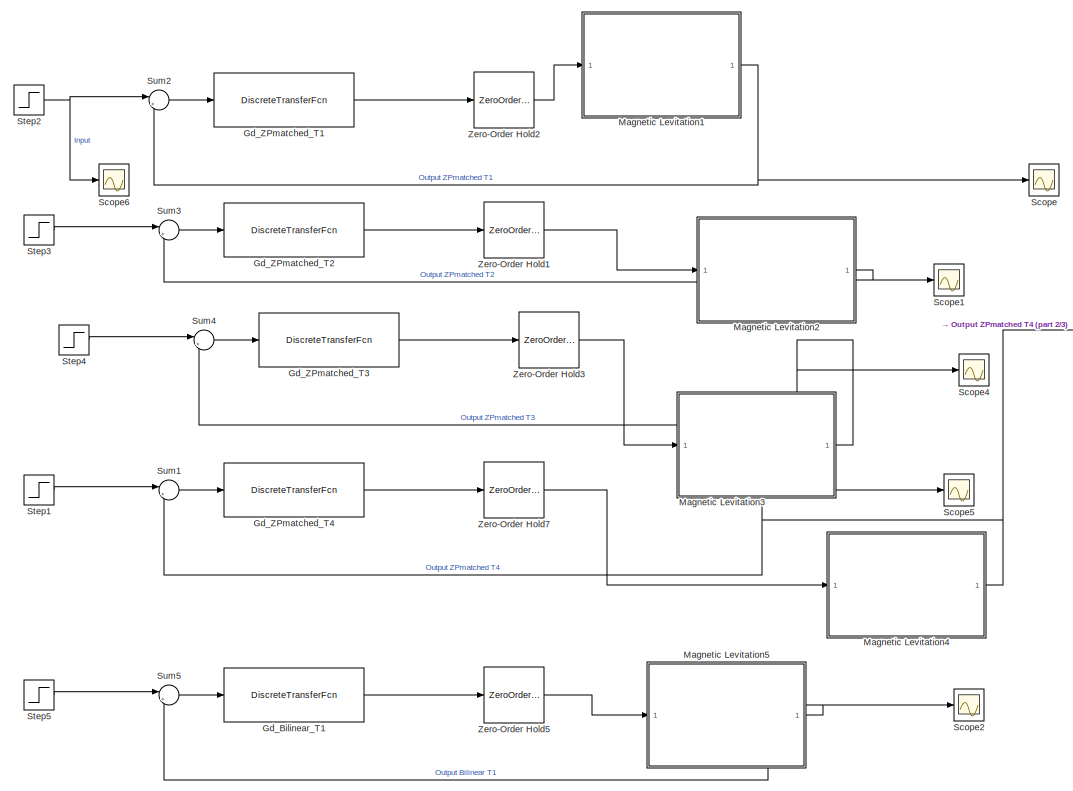
[diagram: root canvas - part 1/3, top center region]
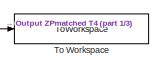
[diagram: root canvas - part 2/3, top right region]
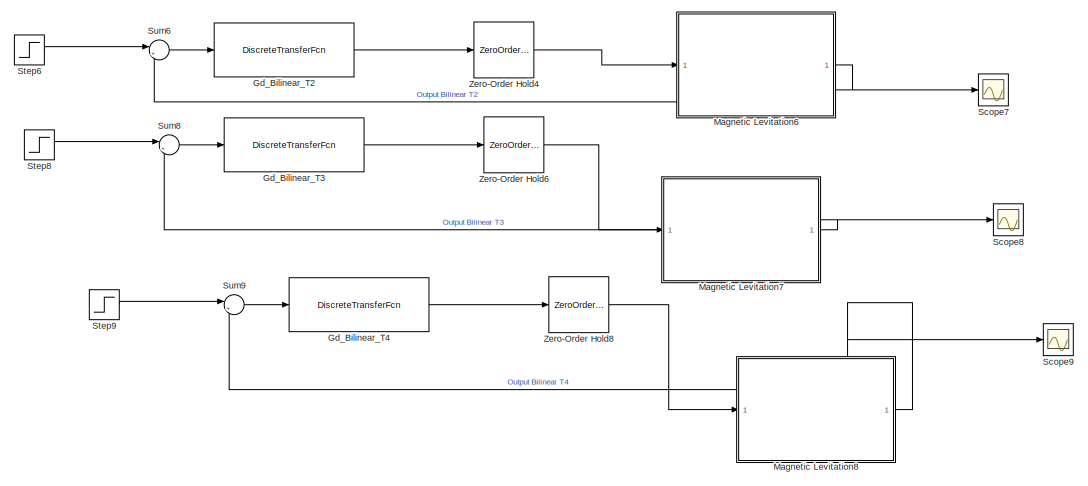
[diagram: root canvas - part 3/3, bottom center region]
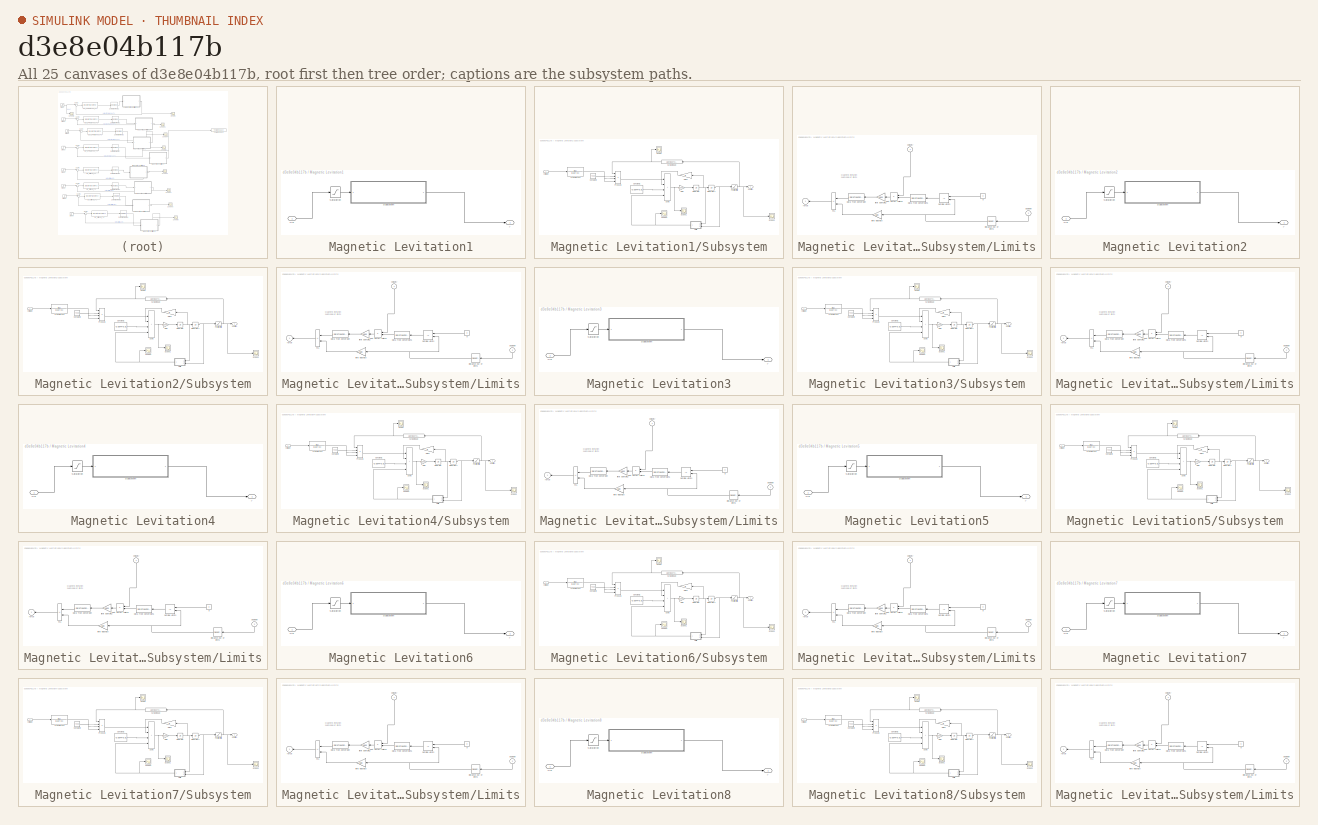
[diagram: thumbnail index - all 25 canvases of the model, root first then tree order]
MODEL slx_d3e8e04b117b
KIND model
CONFIG AbsTol = auto
CONFIG EnableMultiTasking = off
CONFIG FixedStep = auto
CONFIG MaxStep = auto
CONFIG MinStep = auto
CONFIG RelTol = 1e-3
CONFIG SampleTimeConstraint = Unconstrained
CONFIG SolverName = VariableStepAuto
CONFIG StartTime = 0.0
CONFIG StopTime = 100
BLOCK [DiscreteTransferFcn] Gd_Bilinear_T1
  Denominator = cell2mat(Gd_Bilinear_T1.Denominator)
  InputPortMap = u0
  Numerator = cell2mat(Gd_Bilinear_T1.Numerator)
  Ports = [1, 1]
  SampleTime = Ts(1)
BLOCK [DiscreteTransferFcn] Gd_Bilinear_T2
  Denominator = cell2mat(Gd_Bilinear_T2.Denominator)
  InputPortMap = u0
  Numerator = cell2mat(Gd_Bilinear_T2.Numerator)
  Ports = [1, 1]
  SampleTime = Ts(2)
BLOCK [DiscreteTransferFcn] Gd_Bilinear_T3
  Denominator = cell2mat(Gd_Bilinear_T3.Denominator)
  InputPortMap = u0
  Numerator = cell2mat(Gd_Bilinear_T3.Numerator)
  Ports = [1, 1]
  SampleTime = Ts(3)
BLOCK [DiscreteTransferFcn] Gd_Bilinear_T4
  Denominator = cell2mat(Gd_Bilinear_T3.Denominator)
  InputPortMap = u0
  Numerator = cell2mat(Gd_Bilinear_T3.Numerator)
  Ports = [1, 1]
  SampleTime = Ts(4)
BLOCK [DiscreteTransferFcn] Gd_ZPmatched_T1
  Denominator = cell2mat(Gd_ZPmatched_T1.Denominator)
  InputPortMap = u0
  Numerator = cell2mat(Gd_ZPmatched_T1.Numerator)
  Ports = [1, 1]
  SampleTime = Ts(1)
BLOCK [DiscreteTransferFcn] Gd_ZPmatched_T2
  Denominator = cell2mat(Gd_ZPmatched_T2.Denominator)
  InputPortMap = u0
  Numerator = cell2mat(Gd_ZPmatched_T2.Numerator)
  Ports = [1, 1]
  SampleTime = Ts(2)
BLOCK [DiscreteTransferFcn] Gd_ZPmatched_T3
  Denominator = cell2mat(Gd_ZPmatched_T3.Denominator)
  InputPortMap = u0
  Numerator = cell2mat(Gd_ZPmatched_T3.Numerator)
  Ports = [1, 1]
  SampleTime = Ts(3)
BLOCK [DiscreteTransferFcn] Gd_ZPmatched_T4
  Denominator = cell2mat(Gd_ZPmatched_T4.Denominator)
  InputPortMap = u0
  Numerator = cell2mat(Gd_ZPmatched_T4.Numerator)
  Ports = [1, 1]
  SampleTime = Ts(4)
BLOCK [SubSystem] Magnetic Levitation1
  Permissions = NoReadOrWrite
  Ports = [1, 1]
  RequestExecContextInheritance = off
BLOCK [Saturate] Magnetic Levitation1/Saturation
  LowerLimit = -6
  UpperLimit = 10
  ZeroCross = off
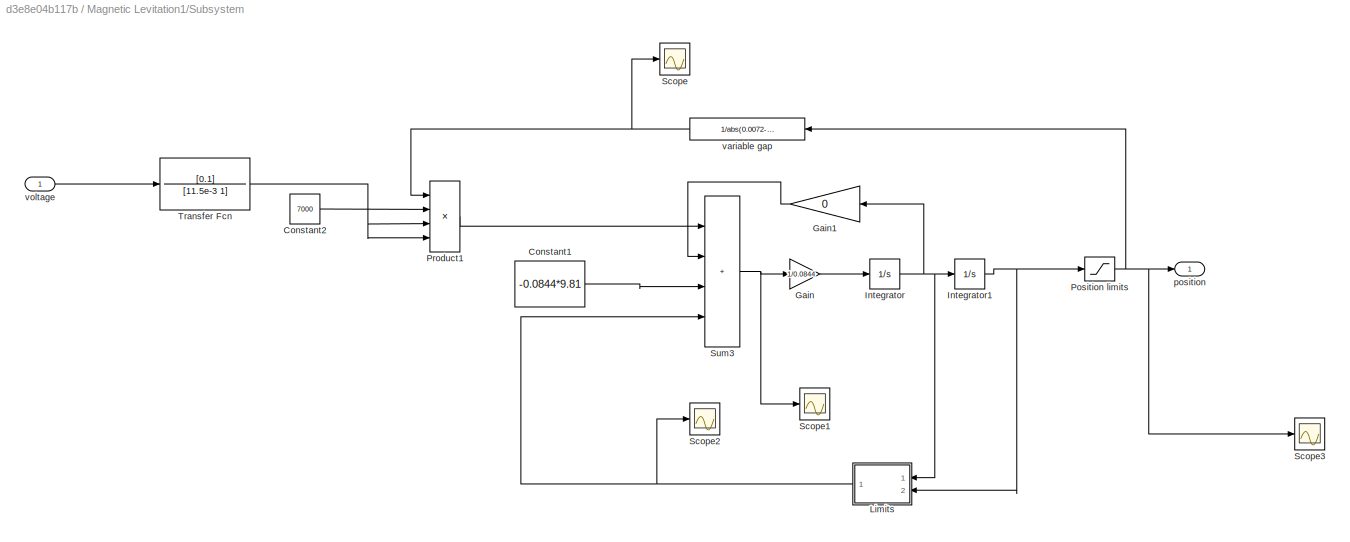
BLOCK [SubSystem] Magnetic Levitation1/Subsystem
  Ports = [1, 1]
  RequestExecContextInheritance = off
BLOCK [Constant] Magnetic Levitation1/Subsystem/Constant1
  Value = -0.0844*9.81
BLOCK [Constant] Magnetic Levitation1/Subsystem/Constant2
  Value = 7000
BLOCK [Gain] Magnetic Levitation1/Subsystem/Gain
  Gain = 1/0.0844
BLOCK [Gain] Magnetic Levitation1/Subsystem/Gain1
  Gain = 0
  NameLocation = top
BLOCK [Integrator] Magnetic Levitation1/Subsystem/Integrator
  Ports = [1, 1]
BLOCK [Integrator] Magnetic Levitation1/Subsystem/Integrator1
  LimitOutput = on
  LowerSaturationLimit = 0
  Ports = [1, 1]
  UpperSaturationLimit = 0.005
BLOCK [SubSystem] Magnetic Levitation1/Subsystem/Limits
  Ports = [2, 1]
  RequestExecContextInheritance = off
  ShowPortLabels = none
BLOCK [Constant] Magnetic Levitation1/Subsystem/Limits/0
  Value = 0
BLOCK [DataTypeConversion] Magnetic Levitation1/Subsystem/Limits/Data Type Conversion
  NameLocation = top
  OutDataTypeStr = double
  RndMeth = Floor
  SaturateOnIntegerOverflow = off
BLOCK [DataTypeConversion] Magnetic Levitation1/Subsystem/Limits/Data Type Conversion1
  NameLocation = top
  OutDataTypeStr = double
  RndMeth = Floor
  SaturateOnIntegerOverflow = off
BLOCK [DeadZone] Magnetic Levitation1/Subsystem/Limits/Distance out of limits
  LowerValue = 0.0002
  UpperValue = 5e-3
  ZeroCross = off
BLOCK [Sum] Magnetic Levitation1/Subsystem/Limits/Fc1
  IconShape = rectangular
  InputSameDT = on
  Inputs = --
  OutDataTypeStr = Inherit: Same as first input
  Ports = [2, 1]
  SaturateOnIntegerOverflow = on
BLOCK [Product] Magnetic Levitation1/Subsystem/Limits/Just on//off switch 
  InputSameDT = on
  OutDataTypeStr = Inherit: Same as first input
  Ports = [2, 1]
  SaturateOnIntegerOverflow = on
BLOCK [RelationalOperator] Magnetic Levitation1/Subsystem/Limits/Outside Limits
  Operator = ~=
  Ports = [2, 1]
BLOCK [Outport] Magnetic Levitation1/Subsystem/Limits/force
  VectorParamsAs1DForOutWhenUnconnected = off
BLOCK [Gain] Magnetic Levitation1/Subsystem/Limits/limit damping
  Gain = 2800
  OutDataTypeStr = Inherit: Same as input
  ParamDataTypeStr = Inherit: Same as input
  SaturateOnIntegerOverflow = on
BLOCK [Gain] Magnetic Levitation1/Subsystem/Limits/limit elasticity
  Gain = 500
  OutDataTypeStr = Inherit: Same as input
  ParamDataTypeStr = Inherit: Same as input
  SaturateOnIntegerOverflow = on
BLOCK [Inport] Magnetic Levitation1/Subsystem/Limits/position
  NameLocation = right
  Port = 2
BLOCK [Inport] Magnetic Levitation1/Subsystem/Limits/velocity
  NameLocation = right
BLOCK [Saturate] Magnetic Levitation1/Subsystem/Position limits
  LowerLimit = 0.00001
  UpperLimit = 0.00499
  ZeroCross = off
BLOCK [Product] Magnetic Levitation1/Subsystem/Product1
  Inputs = 4
  Ports = [4, 1]
BLOCK [Scope] Magnetic Levitation1/Subsystem/Scope
  Floating = off
  NumInputPorts = 1
  Ports = [1]
  ScopeSpecificationString = Simulink.scopes.TimeScopeBlockCfg('CurrentConfiguration', extmgr.ConfigurationSet(extmgr.Configuration('Core','General UI',true),extmgr.Configuration('Core','Source UI',true),extmgr.Configuration('Sources','WiredSimulink',true,'DataLoggingVariableName','ScopeData1'),extmgr.Configuration('Visuals','Time Domain',true,'SerializedDisplays',{struct('MinYLimReal','-40.54054','MaxYLimReal','374.87487','Y...<+1381ch>  <repeated x8 — deduplicated; at blocks: Scope>
BLOCK [Scope] Magnetic Levitation1/Subsystem/Scope1
  Floating = off
  NumInputPorts = 1
  Ports = [1]
  ScopeSpecificationString = Simulink.scopes.TimeScopeBlockCfg('CurrentConfiguration', extmgr.ConfigurationSet(extmgr.Configuration('Core','General UI',true),extmgr.Configuration('Core','Source UI',true),extmgr.Configuration('Sources','WiredSimulink',true,'DataLoggingVariableName','ScopeData2'),extmgr.Configuration('Visuals','Time Domain',true,'SerializedDisplays',{struct('MinYLimReal','-21376391083219120442781708779858395089...<+3841ch>  <repeated x8 — deduplicated; at blocks: Scope1>
BLOCK [Scope] Magnetic Levitation1/Subsystem/Scope2
  Floating = off
  NumInputPorts = 1
  Ports = [1]
  ScopeSpecificationString = Simulink.scopes.TimeScopeBlockCfg('CurrentConfiguration', extmgr.ConfigurationSet(extmgr.Configuration('Core','General UI',true),extmgr.Configuration('Core','Source UI',true),extmgr.Configuration('Sources','WiredSimulink',true,'DataLoggingVariableName','ScopeData3'),extmgr.Configuration('Visuals','Time Domain',true,'SerializedDisplays',{struct('MinYLimReal','-0.1107','MaxYLimReal','1.19629','YLabe...<+1363ch>  <repeated x8 — deduplicated; at blocks: Scope2>
BLOCK [Scope] Magnetic Levitation1/Subsystem/Scope3
  Floating = off
  NumInputPorts = 1
  Ports = [1]
  ScopeSpecificationString = Simulink.scopes.TimeScopeBlockCfg('CurrentConfiguration', extmgr.ConfigurationSet(extmgr.Configuration('Core','General UI',true),extmgr.Configuration('Core','Source UI',true),extmgr.Configuration('Sources','WiredSimulink',true,'DataLoggingVariableName','ScopeData2'),extmgr.Configuration('Visuals','Time Domain',true,'SerializedDisplays',{struct('MinYLimReal','-0.00029','MaxYLimReal','0.00267','YLab...<+1402ch>  <repeated x8 — deduplicated; at blocks: Scope3>
BLOCK [Sum] Magnetic Levitation1/Subsystem/Sum3
  IconShape = rectangular
  Inputs = ++++
  Ports = [4, 1]
BLOCK [TransferFcn] Magnetic Levitation1/Subsystem/Transfer Fcn
  Denominator = [11.5e-3 1]
  Numerator = [0.1]
BLOCK [Outport] Magnetic Levitation1/Subsystem/position 
  VectorParamsAs1DForOutWhenUnconnected = off
BLOCK [Fcn] Magnetic Levitation1/Subsystem/variable gap
  Expr = 1/abs(0.0072-u)
BLOCK [Inport] Magnetic Levitation1/Subsystem/voltage
BLOCK [Inport] Magnetic Levitation1/Vin
BLOCK [Outport] Magnetic Levitation1/y
  VectorParamsAs1DForOutWhenUnconnected = off
BLOCK [SubSystem] Magnetic Levitation2
  Permissions = NoReadOrWrite
  Ports = [1, 1]
  RequestExecContextInheritance = off
BLOCK [Saturate] Magnetic Levitation2/Saturation
  LowerLimit = -6
  UpperLimit = 10
  ZeroCross = off
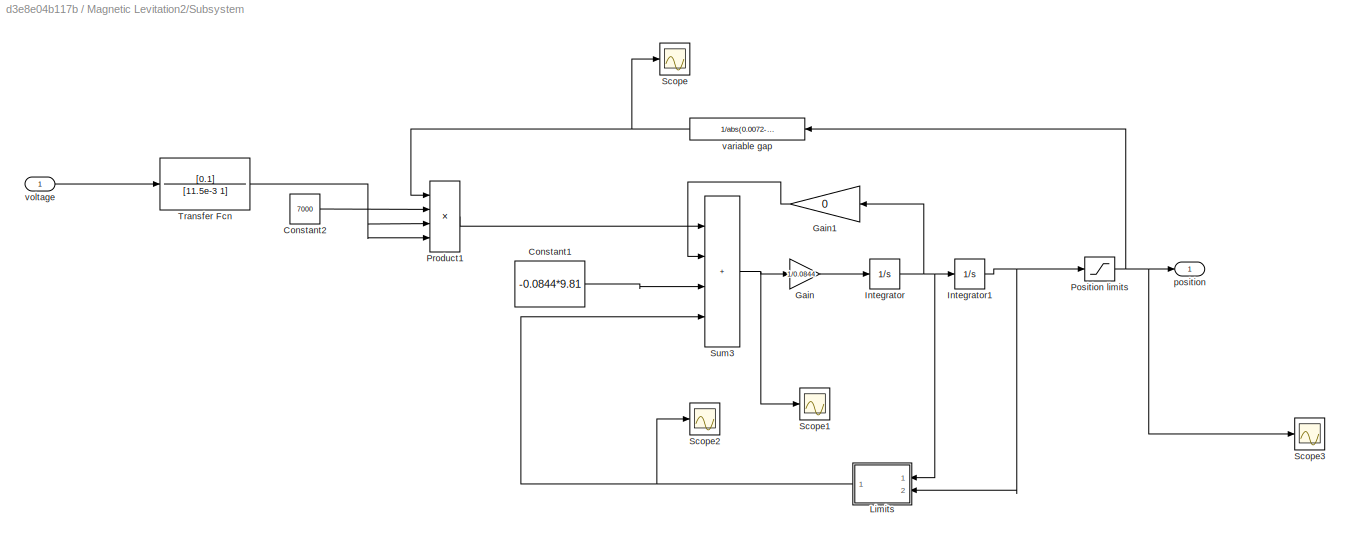
BLOCK [SubSystem] Magnetic Levitation2/Subsystem
  Ports = [1, 1]
  RequestExecContextInheritance = off
BLOCK [Constant] Magnetic Levitation2/Subsystem/Constant1
  Value = -0.0844*9.81
BLOCK [Constant] Magnetic Levitation2/Subsystem/Constant2
  Value = 7000
BLOCK [Gain] Magnetic Levitation2/Subsystem/Gain
  Gain = 1/0.0844
BLOCK [Gain] Magnetic Levitation2/Subsystem/Gain1
  Gain = 0
  NameLocation = top
BLOCK [Integrator] Magnetic Levitation2/Subsystem/Integrator
  Ports = [1, 1]
BLOCK [Integrator] Magnetic Levitation2/Subsystem/Integrator1
  LimitOutput = on
  LowerSaturationLimit = 0
  Ports = [1, 1]
  UpperSaturationLimit = 0.005
BLOCK [SubSystem] Magnetic Levitation2/Subsystem/Limits
  Ports = [2, 1]
  RequestExecContextInheritance = off
  ShowPortLabels = none
BLOCK [Constant] Magnetic Levitation2/Subsystem/Limits/0
  Value = 0
BLOCK [DataTypeConversion] Magnetic Levitation2/Subsystem/Limits/Data Type Conversion
  NameLocation = top
  OutDataTypeStr = double
  RndMeth = Floor
  SaturateOnIntegerOverflow = off
BLOCK [DataTypeConversion] Magnetic Levitation2/Subsystem/Limits/Data Type Conversion1
  NameLocation = top
  OutDataTypeStr = double
  RndMeth = Floor
  SaturateOnIntegerOverflow = off
BLOCK [DeadZone] Magnetic Levitation2/Subsystem/Limits/Distance out of limits
  LowerValue = 0.0002
  UpperValue = 5e-3
  ZeroCross = off
BLOCK [Sum] Magnetic Levitation2/Subsystem/Limits/Fc1
  IconShape = rectangular
  InputSameDT = on
  Inputs = --
  OutDataTypeStr = Inherit: Same as first input
  Ports = [2, 1]
  SaturateOnIntegerOverflow = on
BLOCK [Product] Magnetic Levitation2/Subsystem/Limits/Just on//off switch 
  InputSameDT = on
  OutDataTypeStr = Inherit: Same as first input
  Ports = [2, 1]
  SaturateOnIntegerOverflow = on
BLOCK [RelationalOperator] Magnetic Levitation2/Subsystem/Limits/Outside Limits
  Operator = ~=
  Ports = [2, 1]
BLOCK [Outport] Magnetic Levitation2/Subsystem/Limits/force
  VectorParamsAs1DForOutWhenUnconnected = off
BLOCK [Gain] Magnetic Levitation2/Subsystem/Limits/limit damping
  Gain = 2800
  OutDataTypeStr = Inherit: Same as input
  ParamDataTypeStr = Inherit: Same as input
  SaturateOnIntegerOverflow = on
BLOCK [Gain] Magnetic Levitation2/Subsystem/Limits/limit elasticity
  Gain = 500
  OutDataTypeStr = Inherit: Same as input
  ParamDataTypeStr = Inherit: Same as input
  SaturateOnIntegerOverflow = on
BLOCK [Inport] Magnetic Levitation2/Subsystem/Limits/position
  NameLocation = right
  Port = 2
BLOCK [Inport] Magnetic Levitation2/Subsystem/Limits/velocity
  NameLocation = right
BLOCK [Saturate] Magnetic Levitation2/Subsystem/Position limits
  LowerLimit = 0.00001
  UpperLimit = 0.00499
  ZeroCross = off
BLOCK [Product] Magnetic Levitation2/Subsystem/Product1
  Inputs = 4
  Ports = [4, 1]
BLOCK [Scope] Magnetic Levitation2/Subsystem/Scope
  Floating = off
  NumInputPorts = 1
  Ports = [1]
BLOCK [Scope] Magnetic Levitation2/Subsystem/Scope1
  Floating = off
  NumInputPorts = 1
  Ports = [1]
BLOCK [Scope] Magnetic Levitation2/Subsystem/Scope2
  Floating = off
  NumInputPorts = 1
  Ports = [1]
BLOCK [Scope] Magnetic Levitation2/Subsystem/Scope3
  Floating = off
  NumInputPorts = 1
  Ports = [1]
BLOCK [Sum] Magnetic Levitation2/Subsystem/Sum3
  IconShape = rectangular
  Inputs = ++++
  Ports = [4, 1]
BLOCK [TransferFcn] Magnetic Levitation2/Subsystem/Transfer Fcn
  Denominator = [11.5e-3 1]
  Numerator = [0.1]
BLOCK [Outport] Magnetic Levitation2/Subsystem/position 
  VectorParamsAs1DForOutWhenUnconnected = off
BLOCK [Fcn] Magnetic Levitation2/Subsystem/variable gap
  Expr = 1/abs(0.0072-u)
BLOCK [Inport] Magnetic Levitation2/Subsystem/voltage
BLOCK [Inport] Magnetic Levitation2/Vin
BLOCK [Outport] Magnetic Levitation2/y
  VectorParamsAs1DForOutWhenUnconnected = off
BLOCK [SubSystem] Magnetic Levitation3
  Permissions = NoReadOrWrite
  Ports = [1, 1]
  RequestExecContextInheritance = off
BLOCK [Saturate] Magnetic Levitation3/Saturation
  LowerLimit = -6
  UpperLimit = 10
  ZeroCross = off
BLOCK [SubSystem] Magnetic Levitation3/Subsystem
  Ports = [1, 1]
  RequestExecContextInheritance = off
BLOCK [Constant] Magnetic Levitation3/Subsystem/Constant1
  Value = -0.0844*9.81
BLOCK [Constant] Magnetic Levitation3/Subsystem/Constant2
  Value = 7000
BLOCK [Gain] Magnetic Levitation3/Subsystem/Gain
  Gain = 1/0.0844
BLOCK [Gain] Magnetic Levitation3/Subsystem/Gain1
  Gain = 0
  NameLocation = top
BLOCK [Integrator] Magnetic Levitation3/Subsystem/Integrator
  Ports = [1, 1]
BLOCK [Integrator] Magnetic Levitation3/Subsystem/Integrator1
  LimitOutput = on
  LowerSaturationLimit = 0
  Ports = [1, 1]
  UpperSaturationLimit = 0.005
BLOCK [SubSystem] Magnetic Levitation3/Subsystem/Limits
  Ports = [2, 1]
  RequestExecContextInheritance = off
  ShowPortLabels = none
BLOCK [Constant] Magnetic Levitation3/Subsystem/Limits/0
  Value = 0
BLOCK [DataTypeConversion] Magnetic Levitation3/Subsystem/Limits/Data Type Conversion
  NameLocation = top
  OutDataTypeStr = double
  RndMeth = Floor
  SaturateOnIntegerOverflow = off
BLOCK [DataTypeConversion] Magnetic Levitation3/Subsystem/Limits/Data Type Conversion1
  NameLocation = top
  OutDataTypeStr = double
  RndMeth = Floor
  SaturateOnIntegerOverflow = off
BLOCK [DeadZone] Magnetic Levitation3/Subsystem/Limits/Distance out of limits
  LowerValue = 0.0002
  UpperValue = 5e-3
  ZeroCross = off
BLOCK [Sum] Magnetic Levitation3/Subsystem/Limits/Fc1
  IconShape = rectangular
  InputSameDT = on
  Inputs = --
  OutDataTypeStr = Inherit: Same as first input
  Ports = [2, 1]
  SaturateOnIntegerOverflow = on
BLOCK [Product] Magnetic Levitation3/Subsystem/Limits/Just on//off switch 
  InputSameDT = on
  OutDataTypeStr = Inherit: Same as first input
  Ports = [2, 1]
  SaturateOnIntegerOverflow = on
BLOCK [RelationalOperator] Magnetic Levitation3/Subsystem/Limits/Outside Limits
  Operator = ~=
  Ports = [2, 1]
BLOCK [Outport] Magnetic Levitation3/Subsystem/Limits/force
  VectorParamsAs1DForOutWhenUnconnected = off
BLOCK [Gain] Magnetic Levitation3/Subsystem/Limits/limit damping
  Gain = 2800
  OutDataTypeStr = Inherit: Same as input
  ParamDataTypeStr = Inherit: Same as input
  SaturateOnIntegerOverflow = on
BLOCK [Gain] Magnetic Levitation3/Subsystem/Limits/limit elasticity
  Gain = 500
  OutDataTypeStr = Inherit: Same as input
  ParamDataTypeStr = Inherit: Same as input
  SaturateOnIntegerOverflow = on
BLOCK [Inport] Magnetic Levitation3/Subsystem/Limits/position
  NameLocation = right
  Port = 2
BLOCK [Inport] Magnetic Levitation3/Subsystem/Limits/velocity
  NameLocation = right
BLOCK [Saturate] Magnetic Levitation3/Subsystem/Position limits
  LowerLimit = 0.00001
  UpperLimit = 0.00499
  ZeroCross = off
BLOCK [Product] Magnetic Levitation3/Subsystem/Product1
  Inputs = 4
  Ports = [4, 1]
BLOCK [Scope] Magnetic Levitation3/Subsystem/Scope
  Floating = off
  NumInputPorts = 1
  Ports = [1]
BLOCK [Scope] Magnetic Levitation3/Subsystem/Scope1
  Floating = off
  NumInputPorts = 1
  Ports = [1]
BLOCK [Scope] Magnetic Levitation3/Subsystem/Scope2
  Floating = off
  NumInputPorts = 1
  Ports = [1]
BLOCK [Scope] Magnetic Levitation3/Subsystem/Scope3
  Floating = off
  NumInputPorts = 1
  Ports = [1]
BLOCK [Sum] Magnetic Levitation3/Subsystem/Sum3
  IconShape = rectangular
  Inputs = ++++
  Ports = [4, 1]
BLOCK [TransferFcn] Magnetic Levitation3/Subsystem/Transfer Fcn
  Denominator = [11.5e-3 1]
  Numerator = [0.1]
BLOCK [Outport] Magnetic Levitation3/Subsystem/position 
  VectorParamsAs1DForOutWhenUnconnected = off
BLOCK [Fcn] Magnetic Levitation3/Subsystem/variable gap
  Expr = 1/abs(0.0072-u)
BLOCK [Inport] Magnetic Levitation3/Subsystem/voltage
BLOCK [Inport] Magnetic Levitation3/Vin
BLOCK [Outport] Magnetic Levitation3/y
  VectorParamsAs1DForOutWhenUnconnected = off
BLOCK [SubSystem] Magnetic Levitation4
  Permissions = NoReadOrWrite
  Ports = [1, 1]
  RequestExecContextInheritance = off
BLOCK [Saturate] Magnetic Levitation4/Saturation
  LowerLimit = -6
  UpperLimit = 10
  ZeroCross = off
BLOCK [SubSystem] Magnetic Levitation4/Subsystem
  Ports = [1, 1]
  RequestExecContextInheritance = off
BLOCK [Constant] Magnetic Levitation4/Subsystem/Constant1
  Value = -0.0844*9.81
BLOCK [Constant] Magnetic Levitation4/Subsystem/Constant2
  Value = 7000
BLOCK [Gain] Magnetic Levitation4/Subsystem/Gain
  Gain = 1/0.0844
BLOCK [Gain] Magnetic Levitation4/Subsystem/Gain1
  Gain = 0
  NameLocation = top
BLOCK [Integrator] Magnetic Levitation4/Subsystem/Integrator
  Ports = [1, 1]
BLOCK [Integrator] Magnetic Levitation4/Subsystem/Integrator1
  LimitOutput = on
  LowerSaturationLimit = 0
  Ports = [1, 1]
  UpperSaturationLimit = 0.005
BLOCK [SubSystem] Magnetic Levitation4/Subsystem/Limits
  Ports = [2, 1]
  RequestExecContextInheritance = off
  ShowPortLabels = none
BLOCK [Constant] Magnetic Levitation4/Subsystem/Limits/0
  Value = 0
BLOCK [DataTypeConversion] Magnetic Levitation4/Subsystem/Limits/Data Type Conversion
  NameLocation = top
  OutDataTypeStr = double
  RndMeth = Floor
  SaturateOnIntegerOverflow = off
BLOCK [DataTypeConversion] Magnetic Levitation4/Subsystem/Limits/Data Type Conversion1
  NameLocation = top
  OutDataTypeStr = double
  RndMeth = Floor
  SaturateOnIntegerOverflow = off
BLOCK [DeadZone] Magnetic Levitation4/Subsystem/Limits/Distance out of limits
  LowerValue = 0.0002
  UpperValue = 5e-3
  ZeroCross = off
BLOCK [Sum] Magnetic Levitation4/Subsystem/Limits/Fc1
  IconShape = rectangular
  InputSameDT = on
  Inputs = --
  OutDataTypeStr = Inherit: Same as first input
  Ports = [2, 1]
  SaturateOnIntegerOverflow = on
BLOCK [Product] Magnetic Levitation4/Subsystem/Limits/Just on//off switch 
  InputSameDT = on
  OutDataTypeStr = Inherit: Same as first input
  Ports = [2, 1]
  SaturateOnIntegerOverflow = on
BLOCK [RelationalOperator] Magnetic Levitation4/Subsystem/Limits/Outside Limits
  Operator = ~=
  Ports = [2, 1]
BLOCK [Outport] Magnetic Levitation4/Subsystem/Limits/force
  VectorParamsAs1DForOutWhenUnconnected = off
BLOCK [Gain] Magnetic Levitation4/Subsystem/Limits/limit damping
  Gain = 2800
  OutDataTypeStr = Inherit: Same as input
  ParamDataTypeStr = Inherit: Same as input
  SaturateOnIntegerOverflow = on
BLOCK [Gain] Magnetic Levitation4/Subsystem/Limits/limit elasticity
  Gain = 500
  OutDataTypeStr = Inherit: Same as input
  ParamDataTypeStr = Inherit: Same as input
  SaturateOnIntegerOverflow = on
BLOCK [Inport] Magnetic Levitation4/Subsystem/Limits/position
  NameLocation = right
  Port = 2
BLOCK [Inport] Magnetic Levitation4/Subsystem/Limits/velocity
  NameLocation = right
BLOCK [Saturate] Magnetic Levitation4/Subsystem/Position limits
  LowerLimit = 0.00001
  UpperLimit = 0.00499
  ZeroCross = off
BLOCK [Product] Magnetic Levitation4/Subsystem/Product1
  Inputs = 4
  Ports = [4, 1]
BLOCK [Scope] Magnetic Levitation4/Subsystem/Scope
  Floating = off
  NumInputPorts = 1
  Ports = [1]
BLOCK [Scope] Magnetic Levitation4/Subsystem/Scope1
  Floating = off
  NumInputPorts = 1
  Ports = [1]
BLOCK [Scope] Magnetic Levitation4/Subsystem/Scope2
  Floating = off
  NumInputPorts = 1
  Ports = [1]
BLOCK [Scope] Magnetic Levitation4/Subsystem/Scope3
  Floating = off
  NumInputPorts = 1
  Ports = [1]
BLOCK [Sum] Magnetic Levitation4/Subsystem/Sum3
  IconShape = rectangular
  Inputs = ++++
  Ports = [4, 1]
BLOCK [TransferFcn] Magnetic Levitation4/Subsystem/Transfer Fcn
  Denominator = [11.5e-3 1]
  Numerator = [0.1]
BLOCK [Outport] Magnetic Levitation4/Subsystem/position 
  VectorParamsAs1DForOutWhenUnconnected = off
BLOCK [Fcn] Magnetic Levitation4/Subsystem/variable gap
  Expr = 1/abs(0.0072-u)
BLOCK [Inport] Magnetic Levitation4/Subsystem/voltage
BLOCK [Inport] Magnetic Levitation4/Vin
BLOCK [Outport] Magnetic Levitation4/y
  VectorParamsAs1DForOutWhenUnconnected = off
BLOCK [SubSystem] Magnetic Levitation5
  Permissions = NoReadOrWrite
  Ports = [1, 1]
  RequestExecContextInheritance = off
BLOCK [Saturate] Magnetic Levitation5/Saturation
  LowerLimit = -6
  UpperLimit = 10
  ZeroCross = off
BLOCK [SubSystem] Magnetic Levitation5/Subsystem
  Ports = [1, 1]
  RequestExecContextInheritance = off
BLOCK [Constant] Magnetic Levitation5/Subsystem/Constant1
  Value = -0.0844*9.81
BLOCK [Constant] Magnetic Levitation5/Subsystem/Constant2
  Value = 7000
BLOCK [Gain] Magnetic Levitation5/Subsystem/Gain
  Gain = 1/0.0844
BLOCK [Gain] Magnetic Levitation5/Subsystem/Gain1
  Gain = 0
  NameLocation = top
BLOCK [Integrator] Magnetic Levitation5/Subsystem/Integrator
  Ports = [1, 1]
BLOCK [Integrator] Magnetic Levitation5/Subsystem/Integrator1
  LimitOutput = on
  LowerSaturationLimit = 0
  Ports = [1, 1]
  UpperSaturationLimit = 0.005
BLOCK [SubSystem] Magnetic Levitation5/Subsystem/Limits
  Ports = [2, 1]
  RequestExecContextInheritance = off
  ShowPortLabels = none
BLOCK [Constant] Magnetic Levitation5/Subsystem/Limits/0
  Value = 0
BLOCK [DataTypeConversion] Magnetic Levitation5/Subsystem/Limits/Data Type Conversion
  NameLocation = top
  OutDataTypeStr = double
  RndMeth = Floor
  SaturateOnIntegerOverflow = off
BLOCK [DataTypeConversion] Magnetic Levitation5/Subsystem/Limits/Data Type Conversion1
  NameLocation = top
  OutDataTypeStr = double
  RndMeth = Floor
  SaturateOnIntegerOverflow = off
BLOCK [DeadZone] Magnetic Levitation5/Subsystem/Limits/Distance out of limits
  LowerValue = 0.0002
  UpperValue = 5e-3
  ZeroCross = off
BLOCK [Sum] Magnetic Levitation5/Subsystem/Limits/Fc1
  IconShape = rectangular
  InputSameDT = on
  Inputs = --
  OutDataTypeStr = Inherit: Same as first input
  Ports = [2, 1]
  SaturateOnIntegerOverflow = on
BLOCK [Product] Magnetic Levitation5/Subsystem/Limits/Just on//off switch 
  InputSameDT = on
  OutDataTypeStr = Inherit: Same as first input
  Ports = [2, 1]
  SaturateOnIntegerOverflow = on
BLOCK [RelationalOperator] Magnetic Levitation5/Subsystem/Limits/Outside Limits
  Operator = ~=
  Ports = [2, 1]
BLOCK [Outport] Magnetic Levitation5/Subsystem/Limits/force
  VectorParamsAs1DForOutWhenUnconnected = off
BLOCK [Gain] Magnetic Levitation5/Subsystem/Limits/limit damping
  Gain = 2800
  OutDataTypeStr = Inherit: Same as input
  ParamDataTypeStr = Inherit: Same as input
  SaturateOnIntegerOverflow = on
BLOCK [Gain] Magnetic Levitation5/Subsystem/Limits/limit elasticity
  Gain = 500
  OutDataTypeStr = Inherit: Same as input
  ParamDataTypeStr = Inherit: Same as input
  SaturateOnIntegerOverflow = on
BLOCK [Inport] Magnetic Levitation5/Subsystem/Limits/position
  NameLocation = right
  Port = 2
BLOCK [Inport] Magnetic Levitation5/Subsystem/Limits/velocity
  NameLocation = right
BLOCK [Saturate] Magnetic Levitation5/Subsystem/Position limits
  LowerLimit = 0.00001
  UpperLimit = 0.00499
  ZeroCross = off
BLOCK [Product] Magnetic Levitation5/Subsystem/Product1
  Inputs = 4
  Ports = [4, 1]
BLOCK [Scope] Magnetic Levitation5/Subsystem/Scope
  Floating = off
  NumInputPorts = 1
  Ports = [1]
BLOCK [Scope] Magnetic Levitation5/Subsystem/Scope1
  Floating = off
  NumInputPorts = 1
  Ports = [1]
BLOCK [Scope] Magnetic Levitation5/Subsystem/Scope2
  Floating = off
  NumInputPorts = 1
  Ports = [1]
BLOCK [Scope] Magnetic Levitation5/Subsystem/Scope3
  Floating = off
  NumInputPorts = 1
  Ports = [1]
BLOCK [Sum] Magnetic Levitation5/Subsystem/Sum3
  IconShape = rectangular
  Inputs = ++++
  Ports = [4, 1]
BLOCK [TransferFcn] Magnetic Levitation5/Subsystem/Transfer Fcn
  Denominator = [11.5e-3 1]
  Numerator = [0.1]
BLOCK [Outport] Magnetic Levitation5/Subsystem/position 
  VectorParamsAs1DForOutWhenUnconnected = off
BLOCK [Fcn] Magnetic Levitation5/Subsystem/variable gap
  Expr = 1/abs(0.0072-u)
BLOCK [Inport] Magnetic Levitation5/Subsystem/voltage
BLOCK [Inport] Magnetic Levitation5/Vin
BLOCK [Outport] Magnetic Levitation5/y
  VectorParamsAs1DForOutWhenUnconnected = off
BLOCK [SubSystem] Magnetic Levitation6
  Permissions = NoReadOrWrite
  Ports = [1, 1]
  RequestExecContextInheritance = off
BLOCK [Saturate] Magnetic Levitation6/Saturation
  LowerLimit = -6
  UpperLimit = 10
  ZeroCross = off
BLOCK [SubSystem] Magnetic Levitation6/Subsystem
  Ports = [1, 1]
  RequestExecContextInheritance = off
BLOCK [Constant] Magnetic Levitation6/Subsystem/Constant1
  Value = -0.0844*9.81
BLOCK [Constant] Magnetic Levitation6/Subsystem/Constant2
  Value = 7000
BLOCK [Gain] Magnetic Levitation6/Subsystem/Gain
  Gain = 1/0.0844
BLOCK [Gain] Magnetic Levitation6/Subsystem/Gain1
  Gain = 0
  NameLocation = top
BLOCK [Integrator] Magnetic Levitation6/Subsystem/Integrator
  Ports = [1, 1]
BLOCK [Integrator] Magnetic Levitation6/Subsystem/Integrator1
  LimitOutput = on
  LowerSaturationLimit = 0
  Ports = [1, 1]
  UpperSaturationLimit = 0.005
BLOCK [SubSystem] Magnetic Levitation6/Subsystem/Limits
  Ports = [2, 1]
  RequestExecContextInheritance = off
  ShowPortLabels = none
BLOCK [Constant] Magnetic Levitation6/Subsystem/Limits/0
  Value = 0
BLOCK [DataTypeConversion] Magnetic Levitation6/Subsystem/Limits/Data Type Conversion
  NameLocation = top
  OutDataTypeStr = double
  RndMeth = Floor
  SaturateOnIntegerOverflow = off
BLOCK [DataTypeConversion] Magnetic Levitation6/Subsystem/Limits/Data Type Conversion1
  NameLocation = top
  OutDataTypeStr = double
  RndMeth = Floor
  SaturateOnIntegerOverflow = off
BLOCK [DeadZone] Magnetic Levitation6/Subsystem/Limits/Distance out of limits
  LowerValue = 0.0002
  UpperValue = 5e-3
  ZeroCross = off
BLOCK [Sum] Magnetic Levitation6/Subsystem/Limits/Fc1
  IconShape = rectangular
  InputSameDT = on
  Inputs = --
  OutDataTypeStr = Inherit: Same as first input
  Ports = [2, 1]
  SaturateOnIntegerOverflow = on
BLOCK [Product] Magnetic Levitation6/Subsystem/Limits/Just on//off switch 
  InputSameDT = on
  OutDataTypeStr = Inherit: Same as first input
  Ports = [2, 1]
  SaturateOnIntegerOverflow = on
BLOCK [RelationalOperator] Magnetic Levitation6/Subsystem/Limits/Outside Limits
  Operator = ~=
  Ports = [2, 1]
BLOCK [Outport] Magnetic Levitation6/Subsystem/Limits/force
  VectorParamsAs1DForOutWhenUnconnected = off
BLOCK [Gain] Magnetic Levitation6/Subsystem/Limits/limit damping
  Gain = 2800
  OutDataTypeStr = Inherit: Same as input
  ParamDataTypeStr = Inherit: Same as input
  SaturateOnIntegerOverflow = on
BLOCK [Gain] Magnetic Levitation6/Subsystem/Limits/limit elasticity
  Gain = 500
  OutDataTypeStr = Inherit: Same as input
  ParamDataTypeStr = Inherit: Same as input
  SaturateOnIntegerOverflow = on
BLOCK [Inport] Magnetic Levitation6/Subsystem/Limits/position
  NameLocation = right
  Port = 2
BLOCK [Inport] Magnetic Levitation6/Subsystem/Limits/velocity
  NameLocation = right
BLOCK [Saturate] Magnetic Levitation6/Subsystem/Position limits
  LowerLimit = 0.00001
  UpperLimit = 0.00499
  ZeroCross = off
BLOCK [Product] Magnetic Levitation6/Subsystem/Product1
  Inputs = 4
  Ports = [4, 1]
BLOCK [Scope] Magnetic Levitation6/Subsystem/Scope
  Floating = off
  NumInputPorts = 1
  Ports = [1]
BLOCK [Scope] Magnetic Levitation6/Subsystem/Scope1
  Floating = off
  NumInputPorts = 1
  Ports = [1]
BLOCK [Scope] Magnetic Levitation6/Subsystem/Scope2
  Floating = off
  NumInputPorts = 1
  Ports = [1]
BLOCK [Scope] Magnetic Levitation6/Subsystem/Scope3
  Floating = off
  NumInputPorts = 1
  Ports = [1]
BLOCK [Sum] Magnetic Levitation6/Subsystem/Sum3
  IconShape = rectangular
  Inputs = ++++
  Ports = [4, 1]
BLOCK [TransferFcn] Magnetic Levitation6/Subsystem/Transfer Fcn
  Denominator = [11.5e-3 1]
  Numerator = [0.1]
BLOCK [Outport] Magnetic Levitation6/Subsystem/position 
  VectorParamsAs1DForOutWhenUnconnected = off
BLOCK [Fcn] Magnetic Levitation6/Subsystem/variable gap
  Expr = 1/abs(0.0072-u)
BLOCK [Inport] Magnetic Levitation6/Subsystem/voltage
BLOCK [Inport] Magnetic Levitation6/Vin
BLOCK [Outport] Magnetic Levitation6/y
  VectorParamsAs1DForOutWhenUnconnected = off
BLOCK [SubSystem] Magnetic Levitation7
  Permissions = NoReadOrWrite
  Ports = [1, 1]
  RequestExecContextInheritance = off
BLOCK [Saturate] Magnetic Levitation7/Saturation
  LowerLimit = -6
  UpperLimit = 10
  ZeroCross = off
BLOCK [SubSystem] Magnetic Levitation7/Subsystem
  Ports = [1, 1]
  RequestExecContextInheritance = off
BLOCK [Constant] Magnetic Levitation7/Subsystem/Constant1
  Value = -0.0844*9.81
BLOCK [Constant] Magnetic Levitation7/Subsystem/Constant2
  Value = 7000
BLOCK [Gain] Magnetic Levitation7/Subsystem/Gain
  Gain = 1/0.0844
BLOCK [Gain] Magnetic Levitation7/Subsystem/Gain1
  Gain = 0
  NameLocation = top
BLOCK [Integrator] Magnetic Levitation7/Subsystem/Integrator
  Ports = [1, 1]
BLOCK [Integrator] Magnetic Levitation7/Subsystem/Integrator1
  LimitOutput = on
  LowerSaturationLimit = 0
  Ports = [1, 1]
  UpperSaturationLimit = 0.005
BLOCK [SubSystem] Magnetic Levitation7/Subsystem/Limits
  Ports = [2, 1]
  RequestExecContextInheritance = off
  ShowPortLabels = none
BLOCK [Constant] Magnetic Levitation7/Subsystem/Limits/0
  Value = 0
BLOCK [DataTypeConversion] Magnetic Levitation7/Subsystem/Limits/Data Type Conversion
  NameLocation = top
  OutDataTypeStr = double
  RndMeth = Floor
  SaturateOnIntegerOverflow = off
BLOCK [DataTypeConversion] Magnetic Levitation7/Subsystem/Limits/Data Type Conversion1
  NameLocation = top
  OutDataTypeStr = double
  RndMeth = Floor
  SaturateOnIntegerOverflow = off
BLOCK [DeadZone] Magnetic Levitation7/Subsystem/Limits/Distance out of limits
  LowerValue = 0.0002
  UpperValue = 5e-3
  ZeroCross = off
BLOCK [Sum] Magnetic Levitation7/Subsystem/Limits/Fc1
  IconShape = rectangular
  InputSameDT = on
  Inputs = --
  OutDataTypeStr = Inherit: Same as first input
  Ports = [2, 1]
  SaturateOnIntegerOverflow = on
BLOCK [Product] Magnetic Levitation7/Subsystem/Limits/Just on//off switch 
  InputSameDT = on
  OutDataTypeStr = Inherit: Same as first input
  Ports = [2, 1]
  SaturateOnIntegerOverflow = on
BLOCK [RelationalOperator] Magnetic Levitation7/Subsystem/Limits/Outside Limits
  Operator = ~=
  Ports = [2, 1]
BLOCK [Outport] Magnetic Levitation7/Subsystem/Limits/force
  VectorParamsAs1DForOutWhenUnconnected = off
BLOCK [Gain] Magnetic Levitation7/Subsystem/Limits/limit damping
  Gain = 2800
  OutDataTypeStr = Inherit: Same as input
  ParamDataTypeStr = Inherit: Same as input
  SaturateOnIntegerOverflow = on
BLOCK [Gain] Magnetic Levitation7/Subsystem/Limits/limit elasticity
  Gain = 500
  OutDataTypeStr = Inherit: Same as input
  ParamDataTypeStr = Inherit: Same as input
  SaturateOnIntegerOverflow = on
BLOCK [Inport] Magnetic Levitation7/Subsystem/Limits/position
  NameLocation = right
  Port = 2
BLOCK [Inport] Magnetic Levitation7/Subsystem/Limits/velocity
  NameLocation = right
BLOCK [Saturate] Magnetic Levitation7/Subsystem/Position limits
  LowerLimit = 0.00001
  UpperLimit = 0.00499
  ZeroCross = off
BLOCK [Product] Magnetic Levitation7/Subsystem/Product1
  Inputs = 4
  Ports = [4, 1]
BLOCK [Scope] Magnetic Levitation7/Subsystem/Scope
  Floating = off
  NumInputPorts = 1
  Ports = [1]
BLOCK [Scope] Magnetic Levitation7/Subsystem/Scope1
  Floating = off
  NumInputPorts = 1
  Ports = [1]
BLOCK [Scope] Magnetic Levitation7/Subsystem/Scope2
  Floating = off
  NumInputPorts = 1
  Ports = [1]
BLOCK [Scope] Magnetic Levitation7/Subsystem/Scope3
  Floating = off
  NumInputPorts = 1
  Ports = [1]
BLOCK [Sum] Magnetic Levitation7/Subsystem/Sum3
  IconShape = rectangular
  Inputs = ++++
  Ports = [4, 1]
BLOCK [TransferFcn] Magnetic Levitation7/Subsystem/Transfer Fcn
  Denominator = [11.5e-3 1]
  Numerator = [0.1]
BLOCK [Outport] Magnetic Levitation7/Subsystem/position 
  VectorParamsAs1DForOutWhenUnconnected = off
BLOCK [Fcn] Magnetic Levitation7/Subsystem/variable gap
  Expr = 1/abs(0.0072-u)
BLOCK [Inport] Magnetic Levitation7/Subsystem/voltage
BLOCK [Inport] Magnetic Levitation7/Vin
BLOCK [Outport] Magnetic Levitation7/y
  VectorParamsAs1DForOutWhenUnconnected = off
BLOCK [SubSystem] Magnetic Levitation8
  Permissions = NoReadOrWrite
  Ports = [1, 1]
  RequestExecContextInheritance = off
BLOCK [Saturate] Magnetic Levitation8/Saturation
  LowerLimit = -6
  UpperLimit = 10
  ZeroCross = off
BLOCK [SubSystem] Magnetic Levitation8/Subsystem
  Ports = [1, 1]
  RequestExecContextInheritance = off
BLOCK [Constant] Magnetic Levitation8/Subsystem/Constant1
  Value = -0.0844*9.81
BLOCK [Constant] Magnetic Levitation8/Subsystem/Constant2
  Value = 7000
BLOCK [Gain] Magnetic Levitation8/Subsystem/Gain
  Gain = 1/0.0844
BLOCK [Gain] Magnetic Levitation8/Subsystem/Gain1
  Gain = 0
  NameLocation = top
BLOCK [Integrator] Magnetic Levitation8/Subsystem/Integrator
  Ports = [1, 1]
BLOCK [Integrator] Magnetic Levitation8/Subsystem/Integrator1
  LimitOutput = on
  LowerSaturationLimit = 0
  Ports = [1, 1]
  UpperSaturationLimit = 0.005
BLOCK [SubSystem] Magnetic Levitation8/Subsystem/Limits
  Ports = [2, 1]
  RequestExecContextInheritance = off
  ShowPortLabels = none
BLOCK [Constant] Magnetic Levitation8/Subsystem/Limits/0
  Value = 0
BLOCK [DataTypeConversion] Magnetic Levitation8/Subsystem/Limits/Data Type Conversion
  NameLocation = top
  OutDataTypeStr = double
  RndMeth = Floor
  SaturateOnIntegerOverflow = off
BLOCK [DataTypeConversion] Magnetic Levitation8/Subsystem/Limits/Data Type Conversion1
  NameLocation = top
  OutDataTypeStr = double
  RndMeth = Floor
  SaturateOnIntegerOverflow = off
BLOCK [DeadZone] Magnetic Levitation8/Subsystem/Limits/Distance out of limits
  LowerValue = 0.0002
  UpperValue = 5e-3
  ZeroCross = off
BLOCK [Sum] Magnetic Levitation8/Subsystem/Limits/Fc1
  IconShape = rectangular
  InputSameDT = on
  Inputs = --
  OutDataTypeStr = Inherit: Same as first input
  Ports = [2, 1]
  SaturateOnIntegerOverflow = on
BLOCK [Product] Magnetic Levitation8/Subsystem/Limits/Just on//off switch 
  InputSameDT = on
  OutDataTypeStr = Inherit: Same as first input
  Ports = [2, 1]
  SaturateOnIntegerOverflow = on
BLOCK [RelationalOperator] Magnetic Levitation8/Subsystem/Limits/Outside Limits
  Operator = ~=
  Ports = [2, 1]
BLOCK [Outport] Magnetic Levitation8/Subsystem/Limits/force
  VectorParamsAs1DForOutWhenUnconnected = off
BLOCK [Gain] Magnetic Levitation8/Subsystem/Limits/limit damping
  Gain = 2800
  OutDataTypeStr = Inherit: Same as input
  ParamDataTypeStr = Inherit: Same as input
  SaturateOnIntegerOverflow = on
BLOCK [Gain] Magnetic Levitation8/Subsystem/Limits/limit elasticity
  Gain = 500
  OutDataTypeStr = Inherit: Same as input
  ParamDataTypeStr = Inherit: Same as input
  SaturateOnIntegerOverflow = on
BLOCK [Inport] Magnetic Levitation8/Subsystem/Limits/position
  NameLocation = right
  Port = 2
BLOCK [Inport] Magnetic Levitation8/Subsystem/Limits/velocity
  NameLocation = right
BLOCK [Saturate] Magnetic Levitation8/Subsystem/Position limits
  LowerLimit = 0.00001
  UpperLimit = 0.00499
  ZeroCross = off
BLOCK [Product] Magnetic Levitation8/Subsystem/Product1
  Inputs = 4
  Ports = [4, 1]
BLOCK [Scope] Magnetic Levitation8/Subsystem/Scope
  Floating = off
  NumInputPorts = 1
  Ports = [1]
BLOCK [Scope] Magnetic Levitation8/Subsystem/Scope1
  Floating = off
  NumInputPorts = 1
  Ports = [1]
BLOCK [Scope] Magnetic Levitation8/Subsystem/Scope2
  Floating = off
  NumInputPorts = 1
  Ports = [1]
BLOCK [Scope] Magnetic Levitation8/Subsystem/Scope3
  Floating = off
  NumInputPorts = 1
  Ports = [1]
BLOCK [Sum] Magnetic Levitation8/Subsystem/Sum3
  IconShape = rectangular
  Inputs = ++++
  Ports = [4, 1]
BLOCK [TransferFcn] Magnetic Levitation8/Subsystem/Transfer Fcn
  Denominator = [11.5e-3 1]
  Numerator = [0.1]
BLOCK [Outport] Magnetic Levitation8/Subsystem/position 
  VectorParamsAs1DForOutWhenUnconnected = off
BLOCK [Fcn] Magnetic Levitation8/Subsystem/variable gap
  Expr = 1/abs(0.0072-u)
BLOCK [Inport] Magnetic Levitation8/Subsystem/voltage
BLOCK [Inport] Magnetic Levitation8/Vin
BLOCK [Outport] Magnetic Levitation8/y
  VectorParamsAs1DForOutWhenUnconnected = off
BLOCK [Scope] Scope
  Floating = off
  NumInputPorts = 1
  Ports = [1]
  ScopeSpecificationString = Simulink.scopes.TimeScopeBlockCfg('CurrentConfiguration', extmgr.ConfigurationSet(extmgr.Configuration('Core','General UI',true),extmgr.Configuration('Core','Source UI',true),extmgr.Configuration('Sources','WiredSimulink',true,'DataLoggingSaveFormat','Array','DataLoggingDecimation','1','DataLoggingVariableName','ScopeData1'),extmgr.Configuration('Visuals','Time Domain',true,'SerializedDisplays',{s...<+1627ch>
BLOCK [Scope] Scope1
  Floating = off
  NumInputPorts = 1
  Ports = [1]
  ScopeSpecificationString = Simulink.scopes.TimeScopeBlockCfg('CurrentConfiguration', extmgr.ConfigurationSet(extmgr.Configuration('Core','General UI',true),extmgr.Configuration('Core','Source UI',true),extmgr.Configuration('Sources','WiredSimulink',true,'DataLoggingVariableName','ScopeData2','DataLoggingSaveFormat','Array','DataLoggingDecimation','1'),extmgr.Configuration('Visuals','Time Domain',true,'SerializedDisplays',{s...<+1627ch>
BLOCK [Scope] Scope2
  Floating = off
  NumInputPorts = 1
  Ports = [1]
  ScopeSpecificationString = Simulink.scopes.TimeScopeBlockCfg('CurrentConfiguration', extmgr.ConfigurationSet(extmgr.Configuration('Core','General UI',true),extmgr.Configuration('Core','Source UI',true),extmgr.Configuration('Sources','WiredSimulink',true,'DataLoggingVariableName','ScopeData3','DataLoggingSaveFormat','Array','DataLoggingDecimation','1'),extmgr.Configuration('Visuals','Time Domain',true,'SerializedDisplays',{s...<+1626ch>
BLOCK [Scope] Scope4
  Floating = off
  NumInputPorts = 1
  Ports = [1]
  ScopeSpecificationString = Simulink.scopes.TimeScopeBlockCfg('CurrentConfiguration', extmgr.ConfigurationSet(extmgr.Configuration('Core','General UI',true),extmgr.Configuration('Core','Source UI',true),extmgr.Configuration('Sources','WiredSimulink',true,'DataLoggingVariableName','ScopeData5','DataLoggingSaveFormat','Array','DataLoggingDecimation','1'),extmgr.Configuration('Visuals','Time Domain',true,'SerializedDisplays',{s...<+1627ch>
BLOCK [Scope] Scope5
  Floating = off
  NumInputPorts = 1
  Ports = [1]
  ScopeSpecificationString = Simulink.scopes.TimeScopeBlockCfg('CurrentConfiguration', extmgr.ConfigurationSet(extmgr.Configuration('Core','General UI',true),extmgr.Configuration('Core','Source UI',true),extmgr.Configuration('Sources','WiredSimulink',true,'DataLoggingVariableName','ScopeData6','DataLoggingSaveFormat','Array','DataLoggingDecimation','1'),extmgr.Configuration('Visuals','Time Domain',true,'SerializedDisplays',{s...<+1627ch>
BLOCK [Scope] Scope6
  Floating = off
  NumInputPorts = 1
  Ports = [1]
  ScopeSpecificationString = Simulink.scopes.TimeScopeBlockCfg('CurrentConfiguration', extmgr.ConfigurationSet(extmgr.Configuration('Core','General UI',true),extmgr.Configuration('Core','Source UI',true),extmgr.Configuration('Sources','WiredSimulink',true,'DataLoggingVariableName','ScopeData7','DataLoggingSaveFormat','Array','DataLoggingLimitDataPoints',true,'DataLoggingDecimation','1'),extmgr.Configuration('Visuals','Time Do...<+1613ch>
BLOCK [Scope] Scope7
  Floating = off
  NumInputPorts = 1
  Ports = [1]
  ScopeSpecificationString = Simulink.scopes.TimeScopeBlockCfg('CurrentConfiguration', extmgr.ConfigurationSet(extmgr.Configuration('Core','General UI',true),extmgr.Configuration('Core','Source UI',true),extmgr.Configuration('Sources','WiredSimulink',true,'DataLoggingVariableName','ScopeData8','DataLoggingSaveFormat','Array','DataLoggingDecimation','1'),extmgr.Configuration('Visuals','Time Domain',true,'SerializedDisplays',{s...<+1626ch>
BLOCK [Scope] Scope8
  Floating = off
  NumInputPorts = 1
  Ports = [1]
  ScopeSpecificationString = Simulink.scopes.TimeScopeBlockCfg('CurrentConfiguration', extmgr.ConfigurationSet(extmgr.Configuration('Core','General UI',true),extmgr.Configuration('Core','Source UI',true),extmgr.Configuration('Sources','WiredSimulink',true,'DataLoggingVariableName','ScopeData9','DataLoggingSaveFormat','Array','DataLoggingDecimation','1'),extmgr.Configuration('Visuals','Time Domain',true,'SerializedDisplays',{s...<+1626ch>
BLOCK [Scope] Scope9
  Floating = off
  NumInputPorts = 1
  Ports = [1]
  ScopeSpecificationString = Simulink.scopes.TimeScopeBlockCfg('CurrentConfiguration', extmgr.ConfigurationSet(extmgr.Configuration('Core','General UI',true),extmgr.Configuration('Core','Source UI',true),extmgr.Configuration('Sources','WiredSimulink',true,'DataLoggingVariableName','ScopeData10','DataLoggingSaveFormat','Array','DataLoggingDecimation','1'),extmgr.Configuration('Visuals','Time Domain',true,'SerializedDisplays',{...<+1627ch>
BLOCK [Step] Step1
  After = 0.0001
  SampleTime = 0
  Time = 0
BLOCK [Step] Step2
  After = 0.0001
  SampleTime = 0
  Time = 0
BLOCK [Step] Step3
  After = 0.0001
  SampleTime = 0
  Time = 0
BLOCK [Step] Step4
  After = 0.0001
  SampleTime = 0
  Time = 0
BLOCK [Step] Step5
  After = 0.0001
  SampleTime = 0
  Time = 0
BLOCK [Step] Step6
  After = 0.0001
  SampleTime = 0
  Time = 0
BLOCK [Step] Step8
  After = 0.0001
  SampleTime = 0
  Time = 0
BLOCK [Step] Step9
  After = 0.0001
  SampleTime = 0
  Time = 0
BLOCK [Sum] Sum1
  Inputs = |+-
  Ports = [2, 1]
BLOCK [Sum] Sum2
  Inputs = |+-
  Ports = [2, 1]
BLOCK [Sum] Sum3
  Inputs = |+-
  Ports = [2, 1]
BLOCK [Sum] Sum4
  Inputs = |+-
  Ports = [2, 1]
BLOCK [Sum] Sum5
  Inputs = |+-
  Ports = [2, 1]
BLOCK [Sum] Sum6
  Inputs = |+-
  Ports = [2, 1]
BLOCK [Sum] Sum8
  Inputs = |+-
  Ports = [2, 1]
BLOCK [Sum] Sum9
  Inputs = |+-
  Ports = [2, 1]
BLOCK [ToWorkspace] To Workspace
  FixptAsFi = on
  MaxDataPoints = inf
  Ports = [1]
  SampleTime = -1
  SaveFormat = Timeseries
  VariableName = Parameter_Simulation_Q3NL
BLOCK [ZeroOrderHold] Zero-Order Hold1
  SampleTime = Ts(2)
BLOCK [ZeroOrderHold] Zero-Order Hold2
  SampleTime = Ts(1)
BLOCK [ZeroOrderHold] Zero-Order Hold3
  SampleTime = Ts(3)
BLOCK [ZeroOrderHold] Zero-Order Hold4
  SampleTime = Ts(2)
BLOCK [ZeroOrderHold] Zero-Order Hold5
  SampleTime = Ts(1)
BLOCK [ZeroOrderHold] Zero-Order Hold6
  SampleTime = Ts(3)
BLOCK [ZeroOrderHold] Zero-Order Hold7
  SampleTime = Ts(4)
BLOCK [ZeroOrderHold] Zero-Order Hold8
  SampleTime = Ts(4)
ANNOTATION Magnetic Levitation1/Subsystem/Limits: Magnetic levitation submodel of limits
ANNOTATION Magnetic Levitation2/Subsystem/Limits: Magnetic levitation submodel of limits
ANNOTATION Magnetic Levitation3/Subsystem/Limits: Magnetic levitation submodel of limits
ANNOTATION Magnetic Levitation4/Subsystem/Limits: Magnetic levitation submodel of limits
ANNOTATION Magnetic Levitation5/Subsystem/Limits: Magnetic levitation submodel of limits
ANNOTATION Magnetic Levitation6/Subsystem/Limits: Magnetic levitation submodel of limits
ANNOTATION Magnetic Levitation7/Subsystem/Limits: Magnetic levitation submodel of limits
ANNOTATION Magnetic Levitation8/Subsystem/Limits: Magnetic levitation submodel of limits
LINE Gd_Bilinear_T1:1 -> Zero-Order Hold5:1
LINE Gd_Bilinear_T2:1 -> Zero-Order Hold4:1
LINE Gd_Bilinear_T3:1 -> Zero-Order Hold6:1
LINE Gd_Bilinear_T4:1 -> Zero-Order Hold8:1
LINE Gd_ZPmatched_T1:1 -> Zero-Order Hold2:1
LINE Gd_ZPmatched_T2:1 -> Zero-Order Hold1:1
LINE Gd_ZPmatched_T3:1 -> Zero-Order Hold3:1
LINE Gd_ZPmatched_T4:1 -> Zero-Order Hold7:1
LINE Magnetic Levitation1/Saturation:1 -> Magnetic Levitation1/Subsystem:1
LINE Magnetic Levitation1/Subsystem/Constant1:1 -> Magnetic Levitation1/Subsystem/Sum3:3
LINE Magnetic Levitation1/Subsystem/Constant2:1 -> Magnetic Levitation1/Subsystem/Product1:2
LINE Magnetic Levitation1/Subsystem/Gain1:1 -> Magnetic Levitation1/Subsystem/Sum3:2
LINE Magnetic Levitation1/Subsystem/Gain:1 -> Magnetic Levitation1/Subsystem/Integrator:1
NET Magnetic Levitation1/Subsystem/Integrator1:1 -> Magnetic Levitation1/Subsystem/Limits:2, Magnetic Levitation1/Subsystem/Position limits:1
NET Magnetic Levitation1/Subsystem/Integrator:1 -> Magnetic Levitation1/Subsystem/Gain1:1, Magnetic Levitation1/Subsystem/Integrator1:1, Magnetic Levitation1/Subsystem/Limits:1
LINE Magnetic Levitation1/Subsystem/Limits/0:1 -> Magnetic Levitation1/Subsystem/Limits/Outside Limits:1
LINE Magnetic Levitation1/Subsystem/Limits/Data Type Conversion1:1 -> Magnetic Levitation1/Subsystem/Limits/Just on//off switch :2
LINE Magnetic Levitation1/Subsystem/Limits/Data Type Conversion:1 -> Magnetic Levitation1/Subsystem/Limits/Fc1:1
NET Magnetic Levitation1/Subsystem/Limits/Distance out of limits:1 -> Magnetic Levitation1/Subsystem/Limits/Outside Limits:2, Magnetic Levitation1/Subsystem/Limits/limit elasticity:1
LINE Magnetic Levitation1/Subsystem/Limits/Fc1:1 -> Magnetic Levitation1/Subsystem/Limits/force:1
LINE Magnetic Levitation1/Subsystem/Limits/Just on//off switch :1 -> Magnetic Levitation1/Subsystem/Limits/limit damping:1
LINE Magnetic Levitation1/Subsystem/Limits/Outside Limits:1 -> Magnetic Levitation1/Subsystem/Limits/Data Type Conversion1:1
LINE Magnetic Levitation1/Subsystem/Limits/limit damping:1 -> Magnetic Levitation1/Subsystem/Limits/Data Type Conversion:1
LINE Magnetic Levitation1/Subsystem/Limits/limit elasticity:1 -> Magnetic Levitation1/Subsystem/Limits/Fc1:2
LINE Magnetic Levitation1/Subsystem/Limits/position:1 -> Magnetic Levitation1/Subsystem/Limits/Distance out of limits:1
LINE Magnetic Levitation1/Subsystem/Limits/velocity:1 -> Magnetic Levitation1/Subsystem/Limits/Just on//off switch :1
NET Magnetic Levitation1/Subsystem/Limits:1 -> Magnetic Levitation1/Subsystem/Scope2:1, Magnetic Levitation1/Subsystem/Sum3:4
NET Magnetic Levitation1/Subsystem/Position limits:1 -> Magnetic Levitation1/Subsystem/Scope3:1, Magnetic Levitation1/Subsystem/position :1, Magnetic Levitation1/Subsystem/variable gap:1
LINE Magnetic Levitation1/Subsystem/Product1:1 -> Magnetic Levitation1/Subsystem/Sum3:1
NET Magnetic Levitation1/Subsystem/Sum3:1 -> Magnetic Levitation1/Subsystem/Gain:1, Magnetic Levitation1/Subsystem/Scope1:1
NET Magnetic Levitation1/Subsystem/Transfer Fcn:1 -> Magnetic Levitation1/Subsystem/Product1:3, Magnetic Levitation1/Subsystem/Product1:4
NET Magnetic Levitation1/Subsystem/variable gap:1 -> Magnetic Levitation1/Subsystem/Product1:1, Magnetic Levitation1/Subsystem/Scope:1
LINE Magnetic Levitation1/Subsystem/voltage:1 -> Magnetic Levitation1/Subsystem/Transfer Fcn:1
LINE Magnetic Levitation1/Subsystem:1 -> Magnetic Levitation1/y:1
LINE Magnetic Levitation1/Vin:1 -> Magnetic Levitation1/Saturation:1
NET Magnetic Levitation1:1 -> Scope:1, Sum2:2
LINE Magnetic Levitation2/Saturation:1 -> Magnetic Levitation2/Subsystem:1
LINE Magnetic Levitation2/Subsystem/Constant1:1 -> Magnetic Levitation2/Subsystem/Sum3:3
LINE Magnetic Levitation2/Subsystem/Constant2:1 -> Magnetic Levitation2/Subsystem/Product1:2
LINE Magnetic Levitation2/Subsystem/Gain1:1 -> Magnetic Levitation2/Subsystem/Sum3:2
LINE Magnetic Levitation2/Subsystem/Gain:1 -> Magnetic Levitation2/Subsystem/Integrator:1
NET Magnetic Levitation2/Subsystem/Integrator1:1 -> Magnetic Levitation2/Subsystem/Limits:2, Magnetic Levitation2/Subsystem/Position limits:1
NET Magnetic Levitation2/Subsystem/Integrator:1 -> Magnetic Levitation2/Subsystem/Gain1:1, Magnetic Levitation2/Subsystem/Integrator1:1, Magnetic Levitation2/Subsystem/Limits:1
LINE Magnetic Levitation2/Subsystem/Limits/0:1 -> Magnetic Levitation2/Subsystem/Limits/Outside Limits:1
LINE Magnetic Levitation2/Subsystem/Limits/Data Type Conversion1:1 -> Magnetic Levitation2/Subsystem/Limits/Just on//off switch :2
LINE Magnetic Levitation2/Subsystem/Limits/Data Type Conversion:1 -> Magnetic Levitation2/Subsystem/Limits/Fc1:1
NET Magnetic Levitation2/Subsystem/Limits/Distance out of limits:1 -> Magnetic Levitation2/Subsystem/Limits/Outside Limits:2, Magnetic Levitation2/Subsystem/Limits/limit elasticity:1
LINE Magnetic Levitation2/Subsystem/Limits/Fc1:1 -> Magnetic Levitation2/Subsystem/Limits/force:1
LINE Magnetic Levitation2/Subsystem/Limits/Just on//off switch :1 -> Magnetic Levitation2/Subsystem/Limits/limit damping:1
LINE Magnetic Levitation2/Subsystem/Limits/Outside Limits:1 -> Magnetic Levitation2/Subsystem/Limits/Data Type Conversion1:1
LINE Magnetic Levitation2/Subsystem/Limits/limit damping:1 -> Magnetic Levitation2/Subsystem/Limits/Data Type Conversion:1
LINE Magnetic Levitation2/Subsystem/Limits/limit elasticity:1 -> Magnetic Levitation2/Subsystem/Limits/Fc1:2
LINE Magnetic Levitation2/Subsystem/Limits/position:1 -> Magnetic Levitation2/Subsystem/Limits/Distance out of limits:1
LINE Magnetic Levitation2/Subsystem/Limits/velocity:1 -> Magnetic Levitation2/Subsystem/Limits/Just on//off switch :1
NET Magnetic Levitation2/Subsystem/Limits:1 -> Magnetic Levitation2/Subsystem/Scope2:1, Magnetic Levitation2/Subsystem/Sum3:4
NET Magnetic Levitation2/Subsystem/Position limits:1 -> Magnetic Levitation2/Subsystem/Scope3:1, Magnetic Levitation2/Subsystem/position :1, Magnetic Levitation2/Subsystem/variable gap:1
LINE Magnetic Levitation2/Subsystem/Product1:1 -> Magnetic Levitation2/Subsystem/Sum3:1
NET Magnetic Levitation2/Subsystem/Sum3:1 -> Magnetic Levitation2/Subsystem/Gain:1, Magnetic Levitation2/Subsystem/Scope1:1
NET Magnetic Levitation2/Subsystem/Transfer Fcn:1 -> Magnetic Levitation2/Subsystem/Product1:3, Magnetic Levitation2/Subsystem/Product1:4
NET Magnetic Levitation2/Subsystem/variable gap:1 -> Magnetic Levitation2/Subsystem/Product1:1, Magnetic Levitation2/Subsystem/Scope:1
LINE Magnetic Levitation2/Subsystem/voltage:1 -> Magnetic Levitation2/Subsystem/Transfer Fcn:1
LINE Magnetic Levitation2/Subsystem:1 -> Magnetic Levitation2/y:1
LINE Magnetic Levitation2/Vin:1 -> Magnetic Levitation2/Saturation:1
NET Magnetic Levitation2:1 -> Scope1:1, Sum3:2
LINE Magnetic Levitation3/Saturation:1 -> Magnetic Levitation3/Subsystem:1
LINE Magnetic Levitation3/Subsystem/Constant1:1 -> Magnetic Levitation3/Subsystem/Sum3:3
LINE Magnetic Levitation3/Subsystem/Constant2:1 -> Magnetic Levitation3/Subsystem/Product1:2
LINE Magnetic Levitation3/Subsystem/Gain1:1 -> Magnetic Levitation3/Subsystem/Sum3:2
LINE Magnetic Levitation3/Subsystem/Gain:1 -> Magnetic Levitation3/Subsystem/Integrator:1
NET Magnetic Levitation3/Subsystem/Integrator1:1 -> Magnetic Levitation3/Subsystem/Limits:2, Magnetic Levitation3/Subsystem/Position limits:1
NET Magnetic Levitation3/Subsystem/Integrator:1 -> Magnetic Levitation3/Subsystem/Gain1:1, Magnetic Levitation3/Subsystem/Integrator1:1, Magnetic Levitation3/Subsystem/Limits:1
LINE Magnetic Levitation3/Subsystem/Limits/0:1 -> Magnetic Levitation3/Subsystem/Limits/Outside Limits:1
LINE Magnetic Levitation3/Subsystem/Limits/Data Type Conversion1:1 -> Magnetic Levitation3/Subsystem/Limits/Just on//off switch :2
LINE Magnetic Levitation3/Subsystem/Limits/Data Type Conversion:1 -> Magnetic Levitation3/Subsystem/Limits/Fc1:1
NET Magnetic Levitation3/Subsystem/Limits/Distance out of limits:1 -> Magnetic Levitation3/Subsystem/Limits/Outside Limits:2, Magnetic Levitation3/Subsystem/Limits/limit elasticity:1
LINE Magnetic Levitation3/Subsystem/Limits/Fc1:1 -> Magnetic Levitation3/Subsystem/Limits/force:1
LINE Magnetic Levitation3/Subsystem/Limits/Just on//off switch :1 -> Magnetic Levitation3/Subsystem/Limits/limit damping:1
LINE Magnetic Levitation3/Subsystem/Limits/Outside Limits:1 -> Magnetic Levitation3/Subsystem/Limits/Data Type Conversion1:1
LINE Magnetic Levitation3/Subsystem/Limits/limit damping:1 -> Magnetic Levitation3/Subsystem/Limits/Data Type Conversion:1
LINE Magnetic Levitation3/Subsystem/Limits/limit elasticity:1 -> Magnetic Levitation3/Subsystem/Limits/Fc1:2
LINE Magnetic Levitation3/Subsystem/Limits/position:1 -> Magnetic Levitation3/Subsystem/Limits/Distance out of limits:1
LINE Magnetic Levitation3/Subsystem/Limits/velocity:1 -> Magnetic Levitation3/Subsystem/Limits/Just on//off switch :1
NET Magnetic Levitation3/Subsystem/Limits:1 -> Magnetic Levitation3/Subsystem/Scope2:1, Magnetic Levitation3/Subsystem/Sum3:4
NET Magnetic Levitation3/Subsystem/Position limits:1 -> Magnetic Levitation3/Subsystem/Scope3:1, Magnetic Levitation3/Subsystem/position :1, Magnetic Levitation3/Subsystem/variable gap:1
LINE Magnetic Levitation3/Subsystem/Product1:1 -> Magnetic Levitation3/Subsystem/Sum3:1
NET Magnetic Levitation3/Subsystem/Sum3:1 -> Magnetic Levitation3/Subsystem/Gain:1, Magnetic Levitation3/Subsystem/Scope1:1
NET Magnetic Levitation3/Subsystem/Transfer Fcn:1 -> Magnetic Levitation3/Subsystem/Product1:3, Magnetic Levitation3/Subsystem/Product1:4
NET Magnetic Levitation3/Subsystem/variable gap:1 -> Magnetic Levitation3/Subsystem/Product1:1, Magnetic Levitation3/Subsystem/Scope:1
LINE Magnetic Levitation3/Subsystem/voltage:1 -> Magnetic Levitation3/Subsystem/Transfer Fcn:1
LINE Magnetic Levitation3/Subsystem:1 -> Magnetic Levitation3/y:1
LINE Magnetic Levitation3/Vin:1 -> Magnetic Levitation3/Saturation:1
NET Magnetic Levitation3:1 -> Scope4:1, Sum4:2
LINE Magnetic Levitation4/Saturation:1 -> Magnetic Levitation4/Subsystem:1
LINE Magnetic Levitation4/Subsystem/Constant1:1 -> Magnetic Levitation4/Subsystem/Sum3:3
LINE Magnetic Levitation4/Subsystem/Constant2:1 -> Magnetic Levitation4/Subsystem/Product1:2
LINE Magnetic Levitation4/Subsystem/Gain1:1 -> Magnetic Levitation4/Subsystem/Sum3:2
LINE Magnetic Levitation4/Subsystem/Gain:1 -> Magnetic Levitation4/Subsystem/Integrator:1
NET Magnetic Levitation4/Subsystem/Integrator1:1 -> Magnetic Levitation4/Subsystem/Limits:2, Magnetic Levitation4/Subsystem/Position limits:1
NET Magnetic Levitation4/Subsystem/Integrator:1 -> Magnetic Levitation4/Subsystem/Gain1:1, Magnetic Levitation4/Subsystem/Integrator1:1, Magnetic Levitation4/Subsystem/Limits:1
LINE Magnetic Levitation4/Subsystem/Limits/0:1 -> Magnetic Levitation4/Subsystem/Limits/Outside Limits:1
LINE Magnetic Levitation4/Subsystem/Limits/Data Type Conversion1:1 -> Magnetic Levitation4/Subsystem/Limits/Just on//off switch :2
LINE Magnetic Levitation4/Subsystem/Limits/Data Type Conversion:1 -> Magnetic Levitation4/Subsystem/Limits/Fc1:1
NET Magnetic Levitation4/Subsystem/Limits/Distance out of limits:1 -> Magnetic Levitation4/Subsystem/Limits/Outside Limits:2, Magnetic Levitation4/Subsystem/Limits/limit elasticity:1
LINE Magnetic Levitation4/Subsystem/Limits/Fc1:1 -> Magnetic Levitation4/Subsystem/Limits/force:1
LINE Magnetic Levitation4/Subsystem/Limits/Just on//off switch :1 -> Magnetic Levitation4/Subsystem/Limits/limit damping:1
LINE Magnetic Levitation4/Subsystem/Limits/Outside Limits:1 -> Magnetic Levitation4/Subsystem/Limits/Data Type Conversion1:1
LINE Magnetic Levitation4/Subsystem/Limits/limit damping:1 -> Magnetic Levitation4/Subsystem/Limits/Data Type Conversion:1
LINE Magnetic Levitation4/Subsystem/Limits/limit elasticity:1 -> Magnetic Levitation4/Subsystem/Limits/Fc1:2
LINE Magnetic Levitation4/Subsystem/Limits/position:1 -> Magnetic Levitation4/Subsystem/Limits/Distance out of limits:1
LINE Magnetic Levitation4/Subsystem/Limits/velocity:1 -> Magnetic Levitation4/Subsystem/Limits/Just on//off switch :1
NET Magnetic Levitation4/Subsystem/Limits:1 -> Magnetic Levitation4/Subsystem/Scope2:1, Magnetic Levitation4/Subsystem/Sum3:4
NET Magnetic Levitation4/Subsystem/Position limits:1 -> Magnetic Levitation4/Subsystem/Scope3:1, Magnetic Levitation4/Subsystem/position :1, Magnetic Levitation4/Subsystem/variable gap:1
LINE Magnetic Levitation4/Subsystem/Product1:1 -> Magnetic Levitation4/Subsystem/Sum3:1
NET Magnetic Levitation4/Subsystem/Sum3:1 -> Magnetic Levitation4/Subsystem/Gain:1, Magnetic Levitation4/Subsystem/Scope1:1
NET Magnetic Levitation4/Subsystem/Transfer Fcn:1 -> Magnetic Levitation4/Subsystem/Product1:3, Magnetic Levitation4/Subsystem/Product1:4
NET Magnetic Levitation4/Subsystem/variable gap:1 -> Magnetic Levitation4/Subsystem/Product1:1, Magnetic Levitation4/Subsystem/Scope:1
LINE Magnetic Levitation4/Subsystem/voltage:1 -> Magnetic Levitation4/Subsystem/Transfer Fcn:1
LINE Magnetic Levitation4/Subsystem:1 -> Magnetic Levitation4/y:1
LINE Magnetic Levitation4/Vin:1 -> Magnetic Levitation4/Saturation:1
NET Magnetic Levitation4:1 -> Scope5:1, Sum1:2, To Workspace:1
LINE Magnetic Levitation5/Saturation:1 -> Magnetic Levitation5/Subsystem:1
LINE Magnetic Levitation5/Subsystem/Constant1:1 -> Magnetic Levitation5/Subsystem/Sum3:3
LINE Magnetic Levitation5/Subsystem/Constant2:1 -> Magnetic Levitation5/Subsystem/Product1:2
LINE Magnetic Levitation5/Subsystem/Gain1:1 -> Magnetic Levitation5/Subsystem/Sum3:2
LINE Magnetic Levitation5/Subsystem/Gain:1 -> Magnetic Levitation5/Subsystem/Integrator:1
NET Magnetic Levitation5/Subsystem/Integrator1:1 -> Magnetic Levitation5/Subsystem/Limits:2, Magnetic Levitation5/Subsystem/Position limits:1
NET Magnetic Levitation5/Subsystem/Integrator:1 -> Magnetic Levitation5/Subsystem/Gain1:1, Magnetic Levitation5/Subsystem/Integrator1:1, Magnetic Levitation5/Subsystem/Limits:1
LINE Magnetic Levitation5/Subsystem/Limits/0:1 -> Magnetic Levitation5/Subsystem/Limits/Outside Limits:1
LINE Magnetic Levitation5/Subsystem/Limits/Data Type Conversion1:1 -> Magnetic Levitation5/Subsystem/Limits/Just on//off switch :2
LINE Magnetic Levitation5/Subsystem/Limits/Data Type Conversion:1 -> Magnetic Levitation5/Subsystem/Limits/Fc1:1
NET Magnetic Levitation5/Subsystem/Limits/Distance out of limits:1 -> Magnetic Levitation5/Subsystem/Limits/Outside Limits:2, Magnetic Levitation5/Subsystem/Limits/limit elasticity:1
LINE Magnetic Levitation5/Subsystem/Limits/Fc1:1 -> Magnetic Levitation5/Subsystem/Limits/force:1
LINE Magnetic Levitation5/Subsystem/Limits/Just on//off switch :1 -> Magnetic Levitation5/Subsystem/Limits/limit damping:1
LINE Magnetic Levitation5/Subsystem/Limits/Outside Limits:1 -> Magnetic Levitation5/Subsystem/Limits/Data Type Conversion1:1
LINE Magnetic Levitation5/Subsystem/Limits/limit damping:1 -> Magnetic Levitation5/Subsystem/Limits/Data Type Conversion:1
LINE Magnetic Levitation5/Subsystem/Limits/limit elasticity:1 -> Magnetic Levitation5/Subsystem/Limits/Fc1:2
LINE Magnetic Levitation5/Subsystem/Limits/position:1 -> Magnetic Levitation5/Subsystem/Limits/Distance out of limits:1
LINE Magnetic Levitation5/Subsystem/Limits/velocity:1 -> Magnetic Levitation5/Subsystem/Limits/Just on//off switch :1
NET Magnetic Levitation5/Subsystem/Limits:1 -> Magnetic Levitation5/Subsystem/Scope2:1, Magnetic Levitation5/Subsystem/Sum3:4
NET Magnetic Levitation5/Subsystem/Position limits:1 -> Magnetic Levitation5/Subsystem/Scope3:1, Magnetic Levitation5/Subsystem/position :1, Magnetic Levitation5/Subsystem/variable gap:1
LINE Magnetic Levitation5/Subsystem/Product1:1 -> Magnetic Levitation5/Subsystem/Sum3:1
NET Magnetic Levitation5/Subsystem/Sum3:1 -> Magnetic Levitation5/Subsystem/Gain:1, Magnetic Levitation5/Subsystem/Scope1:1
NET Magnetic Levitation5/Subsystem/Transfer Fcn:1 -> Magnetic Levitation5/Subsystem/Product1:3, Magnetic Levitation5/Subsystem/Product1:4
NET Magnetic Levitation5/Subsystem/variable gap:1 -> Magnetic Levitation5/Subsystem/Product1:1, Magnetic Levitation5/Subsystem/Scope:1
LINE Magnetic Levitation5/Subsystem/voltage:1 -> Magnetic Levitation5/Subsystem/Transfer Fcn:1
LINE Magnetic Levitation5/Subsystem:1 -> Magnetic Levitation5/y:1
LINE Magnetic Levitation5/Vin:1 -> Magnetic Levitation5/Saturation:1
NET Magnetic Levitation5:1 -> Scope2:1, Sum5:2
LINE Magnetic Levitation6/Saturation:1 -> Magnetic Levitation6/Subsystem:1
LINE Magnetic Levitation6/Subsystem/Constant1:1 -> Magnetic Levitation6/Subsystem/Sum3:3
LINE Magnetic Levitation6/Subsystem/Constant2:1 -> Magnetic Levitation6/Subsystem/Product1:2
LINE Magnetic Levitation6/Subsystem/Gain1:1 -> Magnetic Levitation6/Subsystem/Sum3:2
LINE Magnetic Levitation6/Subsystem/Gain:1 -> Magnetic Levitation6/Subsystem/Integrator:1
NET Magnetic Levitation6/Subsystem/Integrator1:1 -> Magnetic Levitation6/Subsystem/Limits:2, Magnetic Levitation6/Subsystem/Position limits:1
NET Magnetic Levitation6/Subsystem/Integrator:1 -> Magnetic Levitation6/Subsystem/Gain1:1, Magnetic Levitation6/Subsystem/Integrator1:1, Magnetic Levitation6/Subsystem/Limits:1
LINE Magnetic Levitation6/Subsystem/Limits/0:1 -> Magnetic Levitation6/Subsystem/Limits/Outside Limits:1
LINE Magnetic Levitation6/Subsystem/Limits/Data Type Conversion1:1 -> Magnetic Levitation6/Subsystem/Limits/Just on//off switch :2
LINE Magnetic Levitation6/Subsystem/Limits/Data Type Conversion:1 -> Magnetic Levitation6/Subsystem/Limits/Fc1:1
NET Magnetic Levitation6/Subsystem/Limits/Distance out of limits:1 -> Magnetic Levitation6/Subsystem/Limits/Outside Limits:2, Magnetic Levitation6/Subsystem/Limits/limit elasticity:1
LINE Magnetic Levitation6/Subsystem/Limits/Fc1:1 -> Magnetic Levitation6/Subsystem/Limits/force:1
LINE Magnetic Levitation6/Subsystem/Limits/Just on//off switch :1 -> Magnetic Levitation6/Subsystem/Limits/limit damping:1
LINE Magnetic Levitation6/Subsystem/Limits/Outside Limits:1 -> Magnetic Levitation6/Subsystem/Limits/Data Type Conversion1:1
LINE Magnetic Levitation6/Subsystem/Limits/limit damping:1 -> Magnetic Levitation6/Subsystem/Limits/Data Type Conversion:1
LINE Magnetic Levitation6/Subsystem/Limits/limit elasticity:1 -> Magnetic Levitation6/Subsystem/Limits/Fc1:2
LINE Magnetic Levitation6/Subsystem/Limits/position:1 -> Magnetic Levitation6/Subsystem/Limits/Distance out of limits:1
LINE Magnetic Levitation6/Subsystem/Limits/velocity:1 -> Magnetic Levitation6/Subsystem/Limits/Just on//off switch :1
NET Magnetic Levitation6/Subsystem/Limits:1 -> Magnetic Levitation6/Subsystem/Scope2:1, Magnetic Levitation6/Subsystem/Sum3:4
NET Magnetic Levitation6/Subsystem/Position limits:1 -> Magnetic Levitation6/Subsystem/Scope3:1, Magnetic Levitation6/Subsystem/position :1, Magnetic Levitation6/Subsystem/variable gap:1
LINE Magnetic Levitation6/Subsystem/Product1:1 -> Magnetic Levitation6/Subsystem/Sum3:1
NET Magnetic Levitation6/Subsystem/Sum3:1 -> Magnetic Levitation6/Subsystem/Gain:1, Magnetic Levitation6/Subsystem/Scope1:1
NET Magnetic Levitation6/Subsystem/Transfer Fcn:1 -> Magnetic Levitation6/Subsystem/Product1:3, Magnetic Levitation6/Subsystem/Product1:4
NET Magnetic Levitation6/Subsystem/variable gap:1 -> Magnetic Levitation6/Subsystem/Product1:1, Magnetic Levitation6/Subsystem/Scope:1
LINE Magnetic Levitation6/Subsystem/voltage:1 -> Magnetic Levitation6/Subsystem/Transfer Fcn:1
LINE Magnetic Levitation6/Subsystem:1 -> Magnetic Levitation6/y:1
LINE Magnetic Levitation6/Vin:1 -> Magnetic Levitation6/Saturation:1
NET Magnetic Levitation6:1 -> Scope7:1, Sum6:2
LINE Magnetic Levitation7/Saturation:1 -> Magnetic Levitation7/Subsystem:1
LINE Magnetic Levitation7/Subsystem/Constant1:1 -> Magnetic Levitation7/Subsystem/Sum3:3
LINE Magnetic Levitation7/Subsystem/Constant2:1 -> Magnetic Levitation7/Subsystem/Product1:2
LINE Magnetic Levitation7/Subsystem/Gain1:1 -> Magnetic Levitation7/Subsystem/Sum3:2
LINE Magnetic Levitation7/Subsystem/Gain:1 -> Magnetic Levitation7/Subsystem/Integrator:1
NET Magnetic Levitation7/Subsystem/Integrator1:1 -> Magnetic Levitation7/Subsystem/Limits:2, Magnetic Levitation7/Subsystem/Position limits:1
NET Magnetic Levitation7/Subsystem/Integrator:1 -> Magnetic Levitation7/Subsystem/Gain1:1, Magnetic Levitation7/Subsystem/Integrator1:1, Magnetic Levitation7/Subsystem/Limits:1
LINE Magnetic Levitation7/Subsystem/Limits/0:1 -> Magnetic Levitation7/Subsystem/Limits/Outside Limits:1
LINE Magnetic Levitation7/Subsystem/Limits/Data Type Conversion1:1 -> Magnetic Levitation7/Subsystem/Limits/Just on//off switch :2
LINE Magnetic Levitation7/Subsystem/Limits/Data Type Conversion:1 -> Magnetic Levitation7/Subsystem/Limits/Fc1:1
NET Magnetic Levitation7/Subsystem/Limits/Distance out of limits:1 -> Magnetic Levitation7/Subsystem/Limits/Outside Limits:2, Magnetic Levitation7/Subsystem/Limits/limit elasticity:1
LINE Magnetic Levitation7/Subsystem/Limits/Fc1:1 -> Magnetic Levitation7/Subsystem/Limits/force:1
LINE Magnetic Levitation7/Subsystem/Limits/Just on//off switch :1 -> Magnetic Levitation7/Subsystem/Limits/limit damping:1
LINE Magnetic Levitation7/Subsystem/Limits/Outside Limits:1 -> Magnetic Levitation7/Subsystem/Limits/Data Type Conversion1:1
LINE Magnetic Levitation7/Subsystem/Limits/limit damping:1 -> Magnetic Levitation7/Subsystem/Limits/Data Type Conversion:1
LINE Magnetic Levitation7/Subsystem/Limits/limit elasticity:1 -> Magnetic Levitation7/Subsystem/Limits/Fc1:2
LINE Magnetic Levitation7/Subsystem/Limits/position:1 -> Magnetic Levitation7/Subsystem/Limits/Distance out of limits:1
LINE Magnetic Levitation7/Subsystem/Limits/velocity:1 -> Magnetic Levitation7/Subsystem/Limits/Just on//off switch :1
NET Magnetic Levitation7/Subsystem/Limits:1 -> Magnetic Levitation7/Subsystem/Scope2:1, Magnetic Levitation7/Subsystem/Sum3:4
NET Magnetic Levitation7/Subsystem/Position limits:1 -> Magnetic Levitation7/Subsystem/Scope3:1, Magnetic Levitation7/Subsystem/position :1, Magnetic Levitation7/Subsystem/variable gap:1
LINE Magnetic Levitation7/Subsystem/Product1:1 -> Magnetic Levitation7/Subsystem/Sum3:1
NET Magnetic Levitation7/Subsystem/Sum3:1 -> Magnetic Levitation7/Subsystem/Gain:1, Magnetic Levitation7/Subsystem/Scope1:1
NET Magnetic Levitation7/Subsystem/Transfer Fcn:1 -> Magnetic Levitation7/Subsystem/Product1:3, Magnetic Levitation7/Subsystem/Product1:4
NET Magnetic Levitation7/Subsystem/variable gap:1 -> Magnetic Levitation7/Subsystem/Product1:1, Magnetic Levitation7/Subsystem/Scope:1
LINE Magnetic Levitation7/Subsystem/voltage:1 -> Magnetic Levitation7/Subsystem/Transfer Fcn:1
LINE Magnetic Levitation7/Subsystem:1 -> Magnetic Levitation7/y:1
LINE Magnetic Levitation7/Vin:1 -> Magnetic Levitation7/Saturation:1
NET Magnetic Levitation7:1 -> Scope8:1, Sum8:2
LINE Magnetic Levitation8/Saturation:1 -> Magnetic Levitation8/Subsystem:1
LINE Magnetic Levitation8/Subsystem/Constant1:1 -> Magnetic Levitation8/Subsystem/Sum3:3
LINE Magnetic Levitation8/Subsystem/Constant2:1 -> Magnetic Levitation8/Subsystem/Product1:2
LINE Magnetic Levitation8/Subsystem/Gain1:1 -> Magnetic Levitation8/Subsystem/Sum3:2
LINE Magnetic Levitation8/Subsystem/Gain:1 -> Magnetic Levitation8/Subsystem/Integrator:1
NET Magnetic Levitation8/Subsystem/Integrator1:1 -> Magnetic Levitation8/Subsystem/Limits:2, Magnetic Levitation8/Subsystem/Position limits:1
NET Magnetic Levitation8/Subsystem/Integrator:1 -> Magnetic Levitation8/Subsystem/Gain1:1, Magnetic Levitation8/Subsystem/Integrator1:1, Magnetic Levitation8/Subsystem/Limits:1
LINE Magnetic Levitation8/Subsystem/Limits/0:1 -> Magnetic Levitation8/Subsystem/Limits/Outside Limits:1
LINE Magnetic Levitation8/Subsystem/Limits/Data Type Conversion1:1 -> Magnetic Levitation8/Subsystem/Limits/Just on//off switch :2
LINE Magnetic Levitation8/Subsystem/Limits/Data Type Conversion:1 -> Magnetic Levitation8/Subsystem/Limits/Fc1:1
NET Magnetic Levitation8/Subsystem/Limits/Distance out of limits:1 -> Magnetic Levitation8/Subsystem/Limits/Outside Limits:2, Magnetic Levitation8/Subsystem/Limits/limit elasticity:1
LINE Magnetic Levitation8/Subsystem/Limits/Fc1:1 -> Magnetic Levitation8/Subsystem/Limits/force:1
LINE Magnetic Levitation8/Subsystem/Limits/Just on//off switch :1 -> Magnetic Levitation8/Subsystem/Limits/limit damping:1
LINE Magnetic Levitation8/Subsystem/Limits/Outside Limits:1 -> Magnetic Levitation8/Subsystem/Limits/Data Type Conversion1:1
LINE Magnetic Levitation8/Subsystem/Limits/limit damping:1 -> Magnetic Levitation8/Subsystem/Limits/Data Type Conversion:1
LINE Magnetic Levitation8/Subsystem/Limits/limit elasticity:1 -> Magnetic Levitation8/Subsystem/Limits/Fc1:2
LINE Magnetic Levitation8/Subsystem/Limits/position:1 -> Magnetic Levitation8/Subsystem/Limits/Distance out of limits:1
LINE Magnetic Levitation8/Subsystem/Limits/velocity:1 -> Magnetic Levitation8/Subsystem/Limits/Just on//off switch :1
NET Magnetic Levitation8/Subsystem/Limits:1 -> Magnetic Levitation8/Subsystem/Scope2:1, Magnetic Levitation8/Subsystem/Sum3:4
NET Magnetic Levitation8/Subsystem/Position limits:1 -> Magnetic Levitation8/Subsystem/Scope3:1, Magnetic Levitation8/Subsystem/position :1, Magnetic Levitation8/Subsystem/variable gap:1
LINE Magnetic Levitation8/Subsystem/Product1:1 -> Magnetic Levitation8/Subsystem/Sum3:1
NET Magnetic Levitation8/Subsystem/Sum3:1 -> Magnetic Levitation8/Subsystem/Gain:1, Magnetic Levitation8/Subsystem/Scope1:1
NET Magnetic Levitation8/Subsystem/Transfer Fcn:1 -> Magnetic Levitation8/Subsystem/Product1:3, Magnetic Levitation8/Subsystem/Product1:4
NET Magnetic Levitation8/Subsystem/variable gap:1 -> Magnetic Levitation8/Subsystem/Product1:1, Magnetic Levitation8/Subsystem/Scope:1
LINE Magnetic Levitation8/Subsystem/voltage:1 -> Magnetic Levitation8/Subsystem/Transfer Fcn:1
LINE Magnetic Levitation8/Subsystem:1 -> Magnetic Levitation8/y:1
LINE Magnetic Levitation8/Vin:1 -> Magnetic Levitation8/Saturation:1
NET Magnetic Levitation8:1 -> Scope9:1, Sum9:2
LINE Step1:1 -> Sum1:1
NET Step2:1 -> Scope6:1, Sum2:1
LINE Step3:1 -> Sum3:1
LINE Step4:1 -> Sum4:1
LINE Step5:1 -> Sum5:1
LINE Step6:1 -> Sum6:1
LINE Step8:1 -> Sum8:1
LINE Step9:1 -> Sum9:1
LINE Sum1:1 -> Gd_ZPmatched_T4:1
LINE Sum2:1 -> Gd_ZPmatched_T1:1
LINE Sum3:1 -> Gd_ZPmatched_T2:1
LINE Sum4:1 -> Gd_ZPmatched_T3:1
LINE Sum5:1 -> Gd_Bilinear_T1:1
LINE Sum6:1 -> Gd_Bilinear_T2:1
LINE Sum8:1 -> Gd_Bilinear_T3:1
LINE Sum9:1 -> Gd_Bilinear_T4:1
LINE Zero-Order Hold1:1 -> Magnetic Levitation2:1
LINE Zero-Order Hold2:1 -> Magnetic Levitation1:1
LINE Zero-Order Hold3:1 -> Magnetic Levitation3:1
LINE Zero-Order Hold4:1 -> Magnetic Levitation6:1
LINE Zero-Order Hold5:1 -> Magnetic Levitation5:1
LINE Zero-Order Hold6:1 -> Magnetic Levitation7:1
LINE Zero-Order Hold7:1 -> Magnetic Levitation4:1
LINE Zero-Order Hold8:1 -> Magnetic Levitation8:1
note: NET lines group one-source signal fan-out (src -> all destinations, sorted); 1:1 wires keep LINE
